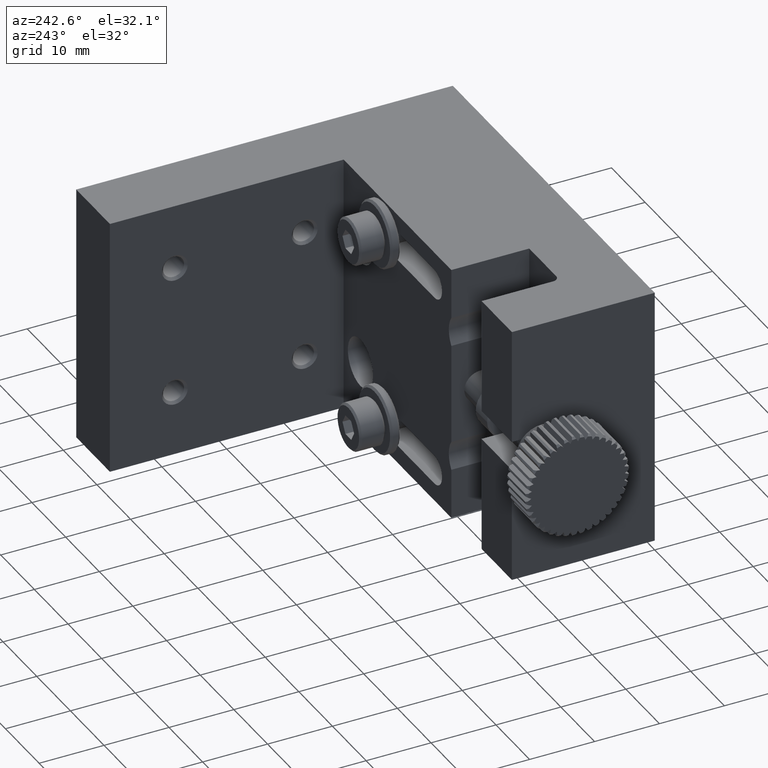
[diagram: clean part render]
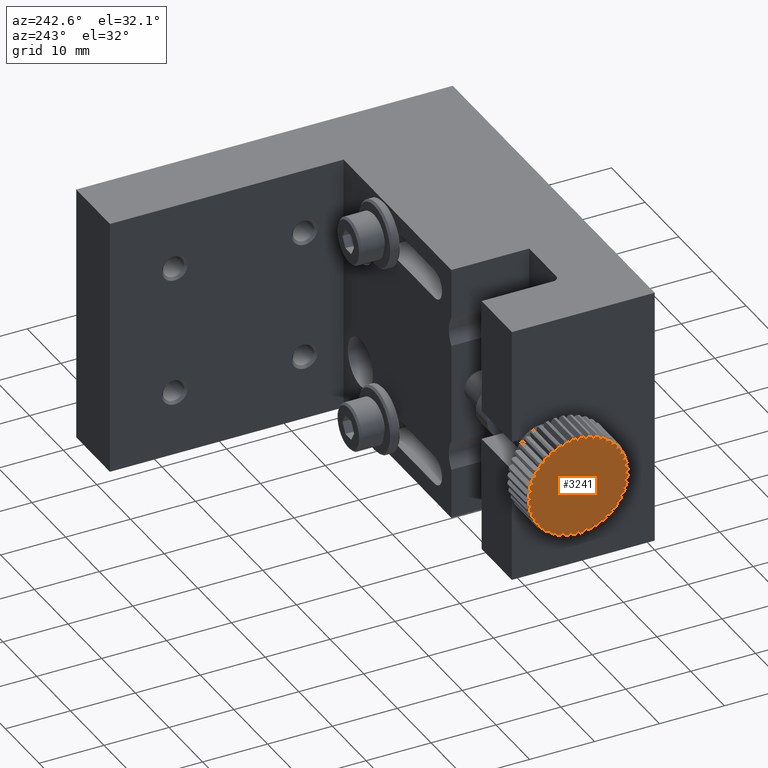
[diagram: same view with one face highlighted and labeled with its STEP entity id]
A machine part, auxiliary view. The second image highlights one B-rep face of the part: STEP entity #3241.
In plain terms, the highlighted planar face has unit normal (1, -0, 0).
Its self-contained STEP definition (entity closure, byte-faithful):
#9 = AXIS2_PLACEMENT_3D ( 'NONE', #11080, #11950, #6945 ) ;
#23 = CARTESIAN_POINT ( 'NONE',  ( -10.99999999999999645, 20.73910209526427195, -13.01938843177370586 ) ) ;
#34 = DIRECTION ( 'NONE',  ( -3.204653064661878969E-18, -0.05233595624294344606, -0.9986295347545739443 ) ) ;
#39 = LINE ( 'NONE', #1856, #2830 ) ;
#51 = CARTESIAN_POINT ( 'NONE',  ( -11.00000000000000000, 14.85435327979484299, -27.22642883323898744 ) ) ;
#75 = CARTESIAN_POINT ( 'NONE',  ( -10.99999999999999822, 17.50000000000000000, -20.00000000000000000 ) ) ;
#113 = CARTESIAN_POINT ( 'NONE',  ( -11.00000000000000000, 23.91524697415625056, -16.73126840187526199 ) ) ;
#116 = DIRECTION ( 'NONE',  ( -5.593852602888079378E-17, -0.9135454576426015327, 0.4067366430757986540 ) ) ;
#124 = ORIENTED_EDGE ( 'NONE', *, *, #1706, .T. ) ;
#136 = CARTESIAN_POINT ( 'NONE',  ( -11.00000000000000000, 17.50000000000000000, -20.00000000000000000 ) ) ;
#141 = EDGE_CURVE ( 'NONE', #5295, #9629, #3499, .T. ) ;
#143 = ORIENTED_EDGE ( 'NONE', *, *, #1100, .T. ) ;
#149 = ORIENTED_EDGE ( 'NONE', *, *, #3475, .F. ) ;
#150 = CARTESIAN_POINT ( 'NONE',  ( -11.00000000000000000, 20.73910209526427195, -26.98061156822629414 ) ) ;
#161 = VERTEX_POINT ( 'NONE', #10525 ) ;
#186 = VERTEX_POINT ( 'NONE', #150 ) ;
#188 = EDGE_CURVE ( 'NONE', #4060, #853, #2432, .T. ) ;
#198 = CARTESIAN_POINT ( 'NONE',  ( -10.99999999999999822, 15.39278486283933134, -27.40137585964400913 ) ) ;
#215 = CARTESIAN_POINT ( 'NONE',  ( -11.00000000000000000, 10.27357116676101256, -17.35435327979483944 ) ) ;
#234 = ORIENTED_EDGE ( 'NONE', *, *, #1347, .T. ) ;
#233 = CARTESIAN_POINT ( 'NONE',  ( -11.00000000000000000, 17.50000000000000000, -20.00000000000000000 ) ) ;
#243 = DIRECTION ( 'NONE',  ( -5.914589856893361534E-17, -0.9659258262890699775, -0.2588190451025147998 ) ) ;
#250 = ORIENTED_EDGE ( 'NONE', *, *, #12262, .F. ) ;
#253 = VECTOR ( 'NONE', #10494, 1000.000000000000114 ) ;
#255 = EDGE_CURVE ( 'NONE', #8892, #4126, #4451, .T. ) ;
#256 = CIRCLE ( 'NONE', #2182, 7.695500000000004448 ) ;
#259 = VERTEX_POINT ( 'NONE', #11105 ) ;
#276 = DIRECTION ( 'NONE',  ( -6.114842316355978540E-17, -0.9986295347545738332, 0.05233595624294497262 ) ) ;
#279 = VECTOR ( 'NONE', #10814, 1000.000000000000227 ) ;
#301 = VERTEX_POINT ( 'NONE', #1477 ) ;
#305 = CARTESIAN_POINT ( 'NONE',  ( -11.00000000000000000, 19.72492235949962236, -13.15239308267489449 ) ) ;
#347 = VERTEX_POINT ( 'NONE', #2756 ) ;
#369 = VECTOR ( 'NONE', #1544, 1000.000000000000114 ) ;
#403 = LINE ( 'NONE', #8521, #369 ) ;
#420 = DIRECTION ( 'NONE',  ( 1.000000000000000000, -6.100543640118497075E-17, 0.000000000000000000 ) ) ;
#423 = LINE ( 'NONE', #7543, #2409 ) ;
#438 = DIRECTION ( 'NONE',  ( -4.550449659119068997E-17, -0.7431448254773966866, 0.6691306063588554620 ) ) ;
#443 = EDGE_CURVE ( 'NONE', #4764, #12290, #5229, .T. ) ;
#444 = LINE ( 'NONE', #10746, #279 ) ;
#449 = EDGE_CURVE ( 'NONE', #8052, #2652, #2060, .T. ) ;
#452 = VECTOR ( 'NONE', #11972, 1000.000000000000000 ) ;
#490 = EDGE_CURVE ( 'NONE', #12202, #3025, #12375, .T. ) ;
#512 = AXIS2_PLACEMENT_3D ( 'NONE', #2788, #3793, #9948 ) ;
#541 = EDGE_CURVE ( 'NONE', #968, #8203, #9169, .T. ) ;
#550 = VERTEX_POINT ( 'NONE', #5426 ) ;
#558 = CIRCLE ( 'NONE', #10191, 7.695500000000008001 ) ;
#567 = ORIENTED_EDGE ( 'NONE', *, *, #10760, .F. ) ;
#577 = DIRECTION ( 'NONE',  ( -2.490543640193590420E-17, -0.4067366430758012075, 0.9135454576426004225 ) ) ;
#605 = CARTESIAN_POINT ( 'NONE',  ( -10.99999999999999822, 9.809707970949141043, -19.71692976504595407 ) ) ;
#614 = CARTESIAN_POINT ( 'NONE',  ( -11.00000000000000000, 16.37367185171034123, -12.88864394771500876 ) ) ;
#644 = ORIENTED_EDGE ( 'NONE', *, *, #10720, .T. ) ;
#646 = CARTESIAN_POINT ( 'NONE',  ( -11.00000000000000000, 12.75075112882201189, -26.05519243373938920 ) ) ;
#662 = AXIS2_PLACEMENT_3D ( 'NONE', #6508, #3225, #7450 ) ;
#698 = DIRECTION ( 'NONE',  ( 5.302876193624527795E-17, 0.8660254037844375974, -0.5000000000000018874 ) ) ;
#704 = CARTESIAN_POINT ( 'NONE',  ( -11.00000000000000000, 10.77641082663006067, -16.25646305244056222 ) ) ;
#711 = EDGE_CURVE ( 'NONE', #9211, #11434, #5480, .T. ) ;
#712 = AXIS2_PLACEMENT_3D ( 'NONE', #8920, #12807, #5787 ) ;
#715 = DIRECTION ( 'NONE',  ( 0.000000000000000000, -1.000000000000000000, 0.000000000000000000 ) ) ;
#716 = LINE ( 'NONE', #1460, #5364 ) ;
#734 = CARTESIAN_POINT ( 'NONE',  ( -10.99999999999999645, 18.98261189020135831, -12.44867016790858827 ) ) ;
#764 = VERTEX_POINT ( 'NONE', #13105 ) ;
#806 = CARTESIAN_POINT ( 'NONE',  ( -10.99999999999999645, 24.90137585964400913, -22.10721513716067221 ) ) ;
#811 = CARTESIAN_POINT ( 'NONE',  ( -10.99999999999999822, 21.79123160981892582, -26.38796145267729187 ) ) ;
#810 = LINE ( 'NONE', #11797, #9116 ) ;
#814 = ORIENTED_EDGE ( 'NONE', *, *, #490, .T. ) ;
#823 = CARTESIAN_POINT ( 'NONE',  ( -11.00000000000000000, 15.27507764050038119, -26.84760691732511262 ) ) ;
#847 = EDGE_CURVE ( 'NONE', #12459, #7409, #2878, .T. ) ;
#853 = VERTEX_POINT ( 'NONE', #1245 ) ;
#890 = VECTOR ( 'NONE', #4622, 1000.000000000000114 ) ;
#919 = ORIENTED_EDGE ( 'NONE', *, *, #7993, .T. ) ;
#958 = CARTESIAN_POINT ( 'NONE',  ( -11.00000000000000000, 23.13801852573479323, -14.76230323964134961 ) ) ;
#965 = VERTEX_POINT ( 'NONE', #10659 ) ;
#966 = DIRECTION ( 'NONE',  ( 1.000000000000000000, -6.100543640118498308E-17, 0.000000000000000000 ) ) ;
#968 = VERTEX_POINT ( 'NONE', #10476 ) ;
#983 = AXIS2_PLACEMENT_3D ( 'NONE', #2354, #4303, #9513 ) ;
#986 = LINE ( 'NONE', #5015, #12198 ) ;
#991 = DIRECTION ( 'NONE',  ( -4.550449659119101661E-17, -0.7431448254774035700, -0.6691306063588478015 ) ) ;
#1011 = DIRECTION ( 'NONE',  ( 0.000000000000000000, -1.000000000000000000, 0.000000000000000000 ) ) ;
#1017 = AXIS2_PLACEMENT_3D ( 'NONE', #3920, #966, #8204 ) ;
#1020 = EDGE_CURVE ( 'NONE', #9629, #2190, #12489, .T. ) ;
#1022 = VERTEX_POINT ( 'NONE', #3329 ) ;
#1023 = DIRECTION ( 'NONE',  ( 1.000000000000000000, -6.100543640118500773E-17, 0.000000000000000000 ) ) ;
#1045 = DIRECTION ( 'NONE',  ( 4.758646570842821780E-17, 0.7771459614569667940, 0.6293203910498426090 ) ) ;
#1050 = VERTEX_POINT ( 'NONE', #6410 ) ;
#1061 = DIRECTION ( 'NONE',  ( 0.000000000000000000, -1.000000000000000000, 0.000000000000000000 ) ) ;
#1072 = VERTEX_POINT ( 'NONE', #11328 ) ;
#1100 = EDGE_CURVE ( 'NONE', #8802, #6089, #8188, .T. ) ;
#1149 = CARTESIAN_POINT ( 'NONE',  ( -10.99999999999999822, 17.50000000000000000, -20.00000000000000000 ) ) ;
#1159 = EDGE_CURVE ( 'NONE', #6503, #10554, #11266, .T. ) ;
#1174 = DIRECTION ( 'NONE',  ( -6.123233995736769734E-17, -1.000000000000000000, -0.000000000000000000 ) ) ;
#1179 = DIRECTION ( 'NONE',  ( -1.273091933326432635E-17, -0.2079116908177604806, 0.9781476007338054668 ) ) ;
#1181 = EDGE_CURVE ( 'NONE', #8474, #9607, #10456, .T. ) ;
#1226 = EDGE_CURVE ( 'NONE', #11151, #12388, #7524, .T. ) ;
#1234 = AXIS2_PLACEMENT_3D ( 'NONE', #6917, #2685, #3748 ) ;
#1236 = VERTEX_POINT ( 'NONE', #1541 ) ;
#1245 = CARTESIAN_POINT ( 'NONE',  ( -10.99999999999999822, 10.27357116676101256, -17.35435327979483944 ) ) ;
#1252 = ORIENTED_EDGE ( 'NONE', *, *, #8625, .F. ) ;
#1258 = VERTEX_POINT ( 'NONE', #3616 ) ;
#1260 = CARTESIAN_POINT ( 'NONE',  ( -10.99999999999999822, 25.05132983209141173, -18.51738810979864525 ) ) ;
#1262 = ORIENTED_EDGE ( 'NONE', *, *, #10866, .T. ) ;
#1286 = DIRECTION ( 'NONE',  ( -6.089690279223581902E-17, -0.9945218953682732899, 0.1045284632676548309 ) ) ;
#1297 = VECTOR ( 'NONE', #10230, 1000.000000000000114 ) ;
#1303 = CIRCLE ( 'NONE', #7097, 7.695500000000009777 ) ;
#1320 = VERTEX_POINT ( 'NONE', #10765 ) ;
#1335 = CARTESIAN_POINT ( 'NONE',  ( -11.00000000000000000, 18.62632814828966232, -27.11135605228499301 ) ) ;
#1347 = EDGE_CURVE ( 'NONE', #1072, #2665, #2955, .T. ) ;
#1361 = VECTOR ( 'NONE', #5651, 1000.000000000000227 ) ;
#1367 = VERTEX_POINT ( 'NONE', #11851 ) ;
#1377 = DIRECTION ( 'NONE',  ( 5.716531405282126160E-17, 0.9335804264972044075, 0.3583679495452933295 ) ) ;
#1384 = VERTEX_POINT ( 'NONE', #9768 ) ;
#1449 = CARTESIAN_POINT ( 'NONE',  ( -11.00000000000000000, 19.72492235949962236, -26.84760691732511262 ) ) ;
#1460 = CARTESIAN_POINT ( 'NONE',  ( -11.00000000000000000, 12.26230323964135316, -14.36198147426521032 ) ) ;
#1466 = CARTESIAN_POINT ( 'NONE',  ( -10.99999999999999822, 12.26230323964135493, -25.63801852573478612 ) ) ;
#1477 = CARTESIAN_POINT ( 'NONE',  ( -10.99999999999999822, 9.948670167908591822, -21.48261189020135831 ) ) ;
#1489 = VERTEX_POINT ( 'NONE', #4158 ) ;
#1504 = CIRCLE ( 'NONE', #10057, 7.695500000000008001 ) ;
#1513 = ORIENTED_EDGE ( 'NONE', *, *, #10918, .T. ) ;
#1516 = DIRECTION ( 'NONE',  ( 0.000000000000000000, -1.000000000000000000, 0.000000000000000000 ) ) ;
#1541 = CARTESIAN_POINT ( 'NONE',  ( -10.99999999999999645, 14.26089790473573160, -26.98061156822629414 ) ) ;
#1543 = VERTEX_POINT ( 'NONE', #9379 ) ;
#1544 = DIRECTION ( 'NONE',  ( -5.135376132867294962E-17, -0.8386705679454258267, -0.5446390350150243087 ) ) ;
#1562 = ORIENTED_EDGE ( 'NONE', *, *, #3882, .T. ) ;
#1575 = ORIENTED_EDGE ( 'NONE', *, *, #7789, .F. ) ;
#1595 = DIRECTION ( 'NONE',  ( 0.000000000000000000, -1.000000000000000000, 0.000000000000000000 ) ) ;
#1598 = ORIENTED_EDGE ( 'NONE', *, *, #9546, .T. ) ;
#1605 = EDGE_CURVE ( 'NONE', #6077, #4523, #10682, .T. ) ;
#1628 = VECTOR ( 'NONE', #9703, 1000.000000000000114 ) ;
#1644 = VERTEX_POINT ( 'NONE', #7695 ) ;
#1659 = AXIS2_PLACEMENT_3D ( 'NONE', #8974, #12995, #5035 ) ;
#1661 = ORIENTED_EDGE ( 'NONE', *, *, #10038, .F. ) ;
#1706 = EDGE_CURVE ( 'NONE', #7181, #5204, #2284, .T. ) ;
#1710 = EDGE_CURVE ( 'NONE', #8535, #8892, #7508, .T. ) ;
#1717 = ORIENTED_EDGE ( 'NONE', *, *, #4243, .T. ) ;
#1728 = EDGE_CURVE ( 'NONE', #6503, #550, #558, .T. ) ;
#1733 = DIRECTION ( 'NONE',  ( 1.273091933326407367E-17, 0.2079116908177589818, -0.9781476007338056888 ) ) ;
#1734 = DIRECTION ( 'NONE',  ( -1.584809575715945333E-17, -0.2588190451025301209, 0.9659258262890657587 ) ) ;
#1753 = CARTESIAN_POINT ( 'NONE',  ( -11.00000000000000000, 11.08475302584375299, -16.73126840187525843 ) ) ;
#1767 = ORIENTED_EDGE ( 'NONE', *, *, #7846, .T. ) ;
#1769 = CARTESIAN_POINT ( 'NONE',  ( -11.00000000000000000, 13.20876839018107241, -13.61203854732270102 ) ) ;
#1803 = CARTESIAN_POINT ( 'NONE',  ( -11.00000000000000000, 14.23126840187526376, -13.58475302584375122 ) ) ;
#1828 = EDGE_CURVE ( 'NONE', #7196, #1367, #12839, .T. ) ;
#1837 = DIRECTION ( 'NONE',  ( 1.000000000000000000, -6.100543640118495843E-17, 0.000000000000000000 ) ) ;
#1840 = DIRECTION ( 'NONE',  ( 0.000000000000000000, -1.000000000000000000, 0.000000000000000000 ) ) ;
#1845 = DIRECTION ( 'NONE',  ( -3.061616997868380553E-17, -0.4999999999999984457, -0.8660254037844394848 ) ) ;
#1847 = CIRCLE ( 'NONE', #4633, 7.695500000000008001 ) ;
#1856 = CARTESIAN_POINT ( 'NONE',  ( -11.00000000000000000, 21.73205381650581103, -14.17507764050037977 ) ) ;
#1877 = EDGE_CURVE ( 'NONE', #3025, #8308, #8747, .T. ) ;
#1927 = CARTESIAN_POINT ( 'NONE',  ( -11.00000000000000178, 13.26794618349419252, -14.17507764050038155 ) ) ;
#1929 = VERTEX_POINT ( 'NONE', #1927 ) ;
#1948 = AXIS2_PLACEMENT_3D ( 'NONE', #4775, #13068, #8773 ) ;
#1973 = DIRECTION ( 'NONE',  ( 5.914589856893331952E-17, 0.9659258262890654256, 0.2588190451025315642 ) ) ;
#1981 = CARTESIAN_POINT ( 'NONE',  ( -11.00000000000000178, 12.26230323964135493, -14.36198147426521743 ) ) ;
#2012 = CARTESIAN_POINT ( 'NONE',  ( -11.00000000000000000, 9.860106286360892369, -20.92344154893408970 ) ) ;
#2020 = VERTEX_POINT ( 'NONE', #10613 ) ;
#2041 = LINE ( 'NONE', #958, #8555 ) ;
#2050 = LINE ( 'NONE', #6140, #4091 ) ;
#2060 = CIRCLE ( 'NONE', #12729, 7.695500000000004448 ) ;
#2064 = CARTESIAN_POINT ( 'NONE',  ( -11.00000000000000000, 14.26089790473573160, -13.01938843177370941 ) ) ;
#2079 = DIRECTION ( 'NONE',  ( 1.000000000000000000, -6.100543640118495843E-17, 0.000000000000000000 ) ) ;
#2094 = EDGE_CURVE ( 'NONE', #8979, #764, #8488, .T. ) ;
#2118 = CARTESIAN_POINT ( 'NONE',  ( -10.99999999999999822, 24.22358917336994111, -23.74353694755944133 ) ) ;
#2119 = VERTEX_POINT ( 'NONE', #9871 ) ;
#2122 = ORIENTED_EDGE ( 'NONE', *, *, #5219, .T. ) ;
#2150 = VERTEX_POINT ( 'NONE', #5667 ) ;
#2172 = EDGE_CURVE ( 'NONE', #5725, #9234, #11882, .T. ) ;
#2177 = CARTESIAN_POINT ( 'NONE',  ( -11.00000000000000000, 25.05132983209141528, -21.48261189020135831 ) ) ;
#2180 = CIRCLE ( 'NONE', #2388, 7.695500000000008001 ) ;
#2182 = AXIS2_PLACEMENT_3D ( 'NONE', #12127, #12582, #11453 ) ;
#2190 = VERTEX_POINT ( 'NONE', #10730 ) ;
#2197 = ORIENTED_EDGE ( 'NONE', *, *, #11591, .F. ) ;
#2207 = CARTESIAN_POINT ( 'NONE',  ( -11.00000000000000000, 11.08475302584375122, -23.26873159812473091 ) ) ;
#2211 = VECTOR ( 'NONE', #4863, 1000.000000000000114 ) ;
#2234 = ORIENTED_EDGE ( 'NONE', *, *, #6774, .F. ) ;
#2236 = DIRECTION ( 'NONE',  ( 5.989426641661588516E-17, 0.9781476007338056888, -0.2079116908177589818 ) ) ;
#2251 = PLANE ( 'NONE',  #3599 ) ;
#2254 = DIRECTION ( 'NONE',  ( 0.000000000000000000, -1.000000000000000000, 0.000000000000000000 ) ) ;
#2255 = EDGE_CURVE ( 'NONE', #4251, #11268, #11949, .T. ) ;
#2260 = VECTOR ( 'NONE', #12601, 1000.000000000000114 ) ;
#2274 = DIRECTION ( 'NONE',  ( 6.089690279223570809E-17, 0.9945218953682734009, -0.1045284632676525827 ) ) ;
#2284 = LINE ( 'NONE', #1335, #5493 ) ;
#2286 = ORIENTED_EDGE ( 'NONE', *, *, #5231, .T. ) ;
#2304 = ORIENTED_EDGE ( 'NONE', *, *, #2967, .T. ) ;
#2337 = EDGE_CURVE ( 'NONE', #259, #1258, #3378, .T. ) ;
#2352 = EDGE_CURVE ( 'NONE', #2119, #2190, #3582, .T. ) ;
#2354 = CARTESIAN_POINT ( 'NONE',  ( -10.99999999999999467, 17.50000000000000000, -20.00000000000000000 ) ) ;
#2356 = VERTEX_POINT ( 'NONE', #8005 ) ;
#2364 = VECTOR ( 'NONE', #6572, 1000.000000000000227 ) ;
#2380 = CARTESIAN_POINT ( 'NONE',  ( -11.00000000000000000, 25.19550000000000978, -20.00000000000000000 ) ) ;
#2388 = AXIS2_PLACEMENT_3D ( 'NONE', #12061, #12195, #9184 ) ;
#2393 = DIRECTION ( 'NONE',  ( 2.194370811638232619E-17, 0.3583679495452954944, -0.9335804264972036304 ) ) ;
#2394 = VERTEX_POINT ( 'NONE', #1981 ) ;
#2409 = VECTOR ( 'NONE', #9600, 1000.000000000000227 ) ;
#2432 = LINE ( 'NONE', #215, #9096 ) ;
#2437 = CIRCLE ( 'NONE', #712, 7.695500000000004448 ) ;
#2448 = DIRECTION ( 'NONE',  ( 0.000000000000000000, -1.000000000000000000, 0.000000000000000000 ) ) ;
#2456 = ORIENTED_EDGE ( 'NONE', *, *, #541, .T. ) ;
#2463 = CARTESIAN_POINT ( 'NONE',  ( -10.99999999999999645, 19.60721513716067221, -12.59862414035599265 ) ) ;
#2471 = CARTESIAN_POINT ( 'NONE',  ( -11.00000000000000000, 12.40883117545686076, -25.09116882454313924 ) ) ;
#2490 = EDGE_CURVE ( 'NONE', #9211, #8474, #8764, .T. ) ;
#2507 = DIRECTION ( 'NONE',  ( 1.000000000000000000, -6.100543640118497075E-17, 0.000000000000000000 ) ) ;
#2537 = DIRECTION ( 'NONE',  ( -5.593852602888086773E-17, -0.9135454576426015327, -0.4067366430757986540 ) ) ;
#2548 = EDGE_CURVE ( 'NONE', #161, #10942, #403, .T. ) ;
#2551 = CARTESIAN_POINT ( 'NONE',  ( -11.00000000000000000, 10.51938843177370053, -23.23910209526425774 ) ) ;
#2564 = CIRCLE ( 'NONE', #10267, 7.695500000000009777 ) ;
#2580 = EDGE_CURVE ( 'NONE', #1236, #3106, #5317, .T. ) ;
#2591 = LINE ( 'NONE', #704, #5048 ) ;
#2599 = EDGE_CURVE ( 'NONE', #7168, #12838, #2729, .T. ) ;
#2639 = ORIENTED_EDGE ( 'NONE', *, *, #7873, .F. ) ;
#2648 = LINE ( 'NONE', #9872, #9215 ) ;
#2652 = VERTEX_POINT ( 'NONE', #10973 ) ;
#2665 = VERTEX_POINT ( 'NONE', #1753 ) ;
#2685 = DIRECTION ( 'NONE',  ( 1.000000000000000000, -6.100543640118498308E-17, 0.000000000000000000 ) ) ;
#2691 = VERTEX_POINT ( 'NONE', #11050 ) ;
#2697 = VECTOR ( 'NONE', #3828, 1000.000000000000000 ) ;
#2717 = ORIENTED_EDGE ( 'NONE', *, *, #3901, .T. ) ;
#2718 = CARTESIAN_POINT ( 'NONE',  ( -11.00000000000000000, 11.67507764050038332, -15.76794618349419075 ) ) ;
#2729 = CIRCLE ( 'NONE', #1659, 7.695500000000009777 ) ;
#2736 = CARTESIAN_POINT ( 'NONE',  ( -11.00000000000000000, 20.76873159812474157, -13.58475302584375122 ) ) ;
#2752 = VERTEX_POINT ( 'NONE', #9032 ) ;
#2756 = CARTESIAN_POINT ( 'NONE',  ( -10.99999999999999822, 17.78307023495404238, -27.69029202905085896 ) ) ;
#2765 = CIRCLE ( 'NONE', #10253, 7.695500000000008001 ) ;
#2771 = CARTESIAN_POINT ( 'NONE',  ( -11.00000000000000000, 22.59116882454314279, -25.09116882454313924 ) ) ;
#2785 = VECTOR ( 'NONE', #7696, 1000.000000000000114 ) ;
#2788 = CARTESIAN_POINT ( 'NONE',  ( -11.00000000000000000, 17.50000000000000000, -20.00000000000000000 ) ) ;
#2797 = DIRECTION ( 'NONE',  ( -4.758646570842836571E-17, -0.7771459614569662389, -0.6293203910498432752 ) ) ;
#2830 = VECTOR ( 'NONE', #9220, 1000.000000000000114 ) ;
#2850 = ORIENTED_EDGE ( 'NONE', *, *, #11963, .T. ) ;
#2869 = LINE ( 'NONE', #51, #8356 ) ;
#2878 = CIRCLE ( 'NONE', #11669, 7.695500000000011553 ) ;
#2892 = LINE ( 'NONE', #13003, #2697 ) ;
#2901 = VECTOR ( 'NONE', #10647, 1000.000000000000114 ) ;
#2910 = DIRECTION ( 'NONE',  ( 1.000000000000000000, -6.100543640118497075E-17, -3.389190911176942777E-18 ) ) ;
#2915 = DIRECTION ( 'NONE',  ( 1.000000000000000000, -6.100543640118497075E-17, 0.000000000000000000 ) ) ;
#2919 = DIRECTION ( 'NONE',  ( 1.000000000000000000, -6.100543640118495843E-17, -6.616290258664929737E-33 ) ) ;
#2953 = VECTOR ( 'NONE', #3239, 1000.000000000000114 ) ;
#2955 = LINE ( 'NONE', #6979, #8049 ) ;
#2962 = ORIENTED_EDGE ( 'NONE', *, *, #7069, .T. ) ;
#2964 = DIRECTION ( 'NONE',  ( 1.000000000000000000, -6.100543640118497075E-17, 0.000000000000000000 ) ) ;
#2967 = EDGE_CURVE ( 'NONE', #11600, #10732, #12566, .T. ) ;
#2977 = DIRECTION ( 'NONE',  ( -5.914589856893331952E-17, -0.9659258262890654256, 0.2588190451025315642 ) ) ;
#2982 = CARTESIAN_POINT ( 'NONE',  ( -11.00000000000000000, 24.48061156822630124, -16.76089790473573160 ) ) ;
#3025 = VERTEX_POINT ( 'NONE', #2718 ) ;
#3026 = VECTOR ( 'NONE', #7570, 1000.000000000000227 ) ;
#3041 = LINE ( 'NONE', #8332, #4727 ) ;
#3106 = VERTEX_POINT ( 'NONE', #3788 ) ;
#3120 = CARTESIAN_POINT ( 'NONE',  ( -10.99999999999999822, 17.50000000000000000, -20.00000000000000000 ) ) ;
#3149 = LINE ( 'NONE', #5098, #7741 ) ;
#3157 = VERTEX_POINT ( 'NONE', #8144 ) ;
#3211 = CARTESIAN_POINT ( 'NONE',  ( -11.00000000000000000, 11.67507764050038332, -15.76794618349419075 ) ) ;
#3225 = DIRECTION ( 'NONE',  ( 1.000000000000000000, -6.100543640118495843E-17, 0.000000000000000000 ) ) ;
#3233 = VECTOR ( 'NONE', #2537, 1000.000000000000227 ) ;
#3239 = DIRECTION ( 'NONE',  ( 5.302876193624521016E-17, 0.8660254037844380415, 0.5000000000000011102 ) ) ;
#3241 = ADVANCED_FACE ( 'NONE', ( #12420 ), #2251, .F. ) ;
#3252 = VECTOR ( 'NONE', #4234, 1000.000000000000114 ) ;
#3301 = CARTESIAN_POINT ( 'NONE',  ( -11.00000000000000000, 16.37367185171034123, -12.88864394771500876 ) ) ;
#3317 = DIRECTION ( 'NONE',  ( 0.000000000000000000, -1.000000000000000000, 0.000000000000000000 ) ) ;
#3329 = CARTESIAN_POINT ( 'NONE',  ( -10.99999999999999822, 25.13989371363911118, -20.92344154893408614 ) ) ;
#3355 = VECTOR ( 'NONE', #9482, 999.9999999999998863 ) ;
#3357 = CARTESIAN_POINT ( 'NONE',  ( -11.00000000000000000, 18.62632814828966232, -27.11135605228499301 ) ) ;
#3363 = CARTESIAN_POINT ( 'NONE',  ( -11.00000000000000000, 23.88796145267729187, -15.70876839018107241 ) ) ;
#3365 = ORIENTED_EDGE ( 'NONE', *, *, #9176, .T. ) ;
#3378 = CIRCLE ( 'NONE', #10421, 7.695500000000008001 ) ;
#3402 = CARTESIAN_POINT ( 'NONE',  ( -11.00000000000000000, 23.91524697415625056, -23.26873159812474157 ) ) ;
#3437 = CARTESIAN_POINT ( 'NONE',  ( -10.99999999999999645, 17.50000000000000000, -20.00000000000000000 ) ) ;
#3440 = AXIS2_PLACEMENT_3D ( 'NONE', #10552, #11369, #12567 ) ;
#3451 = CARTESIAN_POINT ( 'NONE',  ( -11.00000000000000000, 16.57655845106591030, -12.36010628636089415 ) ) ;
#3452 = CARTESIAN_POINT ( 'NONE',  ( -11.00000000000000000, 12.40883117545686076, -25.09116882454313924 ) ) ;
#3475 = EDGE_CURVE ( 'NONE', #968, #3945, #8101, .T. ) ;
#3486 = CARTESIAN_POINT ( 'NONE',  ( -11.00000000000000000, 17.50000000000000000, -27.20000000000000284 ) ) ;
#3499 = LINE ( 'NONE', #7530, #2260 ) ;
#3555 = VERTEX_POINT ( 'NONE', #823 ) ;
#3570 = VECTOR ( 'NONE', #3712, 1000.000000000000000 ) ;
#3575 = EDGE_CURVE ( 'NONE', #11600, #10192, #3817, .T. ) ;
#3577 = EDGE_CURVE ( 'NONE', #2020, #1320, #12147, .T. ) ;
#3582 = CIRCLE ( 'NONE', #1017, 7.695500000000008001 ) ;
#3594 = ORIENTED_EDGE ( 'NONE', *, *, #10528, .T. ) ;
#3599 = AXIS2_PLACEMENT_3D ( 'NONE', #2380, #4399, #1174 ) ;
#3616 = CARTESIAN_POINT ( 'NONE',  ( -10.99999999999999822, 24.48061156822629059, -16.76089790473573160 ) ) ;
#3638 = ORIENTED_EDGE ( 'NONE', *, *, #6187, .F. ) ;
#3642 = DIRECTION ( 'NONE',  ( 1.000000000000000000, -6.100543640118500773E-17, 0.000000000000000000 ) ) ;
#3662 = CARTESIAN_POINT ( 'NONE',  ( -10.99999999999999822, 17.78307023495404238, -12.30970797094913927 ) ) ;
#3663 = DIRECTION ( 'NONE',  ( 3.061616997868407670E-17, 0.5000000000000018874, -0.8660254037844375974 ) ) ;
#3677 = ORIENTED_EDGE ( 'NONE', *, *, #4499, .F. ) ;
#3704 = DIRECTION ( 'NONE',  ( -6.400522398026084468E-18, -0.1045284632676514031, 0.9945218953682736229 ) ) ;
#3712 = DIRECTION ( 'NONE',  ( -0.000000000000000000, 0.8660254037844380415, 0.5000000000000009992 ) ) ;
#3733 = CARTESIAN_POINT ( 'NONE',  ( -11.00000000000000000, 9.809707970949141043, -20.28307023495403882 ) ) ;
#3740 = DIRECTION ( 'NONE',  ( 3.204653064661624361E-18, 0.05233595624294192644, 0.9986295347545740553 ) ) ;
#3741 = ORIENTED_EDGE ( 'NONE', *, *, #6574, .F. ) ;
#3744 = VECTOR ( 'NONE', #8741, 1000.000000000000114 ) ;
#3748 = DIRECTION ( 'NONE',  ( 0.000000000000000000, -1.000000000000000000, 0.000000000000000000 ) ) ;
#3765 = DIRECTION ( 'NONE',  ( 0.000000000000000000, -1.000000000000000000, 0.000000000000000000 ) ) ;
#3788 = CARTESIAN_POINT ( 'NONE',  ( -10.99999999999999822, 14.85435327979484121, -27.22642883323898744 ) ) ;
#3793 = DIRECTION ( 'NONE',  ( 1.000000000000000000, -6.100543640118497075E-17, 0.000000000000000000 ) ) ;
#3808 = VERTEX_POINT ( 'NONE', #6662 ) ;
#3817 = CIRCLE ( 'NONE', #12366, 7.695500000000011553 ) ;
#3828 = DIRECTION ( 'NONE',  ( 5.914589856893333184E-17, 0.9659258262890653146, -0.2588190451025319527 ) ) ;
#3882 = EDGE_CURVE ( 'NONE', #4462, #4060, #6990, .T. ) ;
#3887 = VECTOR ( 'NONE', #6246, 1000.000000000000000 ) ;
#3893 = DIRECTION ( 'NONE',  ( -5.989426641661588516E-17, -0.9781476007338056888, -0.2079116908177589818 ) ) ;
#3899 = AXIS2_PLACEMENT_3D ( 'NONE', #6696, #10811, #1516 ) ;
#3901 = EDGE_CURVE ( 'NONE', #1367, #5143, #8982, .T. ) ;
#3920 = CARTESIAN_POINT ( 'NONE',  ( -11.00000000000000000, 17.50000000000000000, -20.00000000000000000 ) ) ;
#3922 = VERTEX_POINT ( 'NONE', #811 ) ;
#3933 = EDGE_CURVE ( 'NONE', #13100, #10890, #5848, .T. ) ;
#3935 = AXIS2_PLACEMENT_3D ( 'NONE', #8851, #12001, #3765 ) ;
#3945 = VERTEX_POINT ( 'NONE', #5982 ) ;
#3981 = LINE ( 'NONE', #12149, #2211 ) ;
#3988 = ORIENTED_EDGE ( 'NONE', *, *, #141, .T. ) ;
#4000 = CARTESIAN_POINT ( 'NONE',  ( -11.00000000000000000, 10.38864394771501232, -21.12632814828966232 ) ) ;
#4051 = DIRECTION ( 'NONE',  ( 6.400522398026200794E-18, 0.1045284632676532904, 0.9945218953682734009 ) ) ;
#4060 = VERTEX_POINT ( 'NONE', #5248 ) ;
#4087 = LINE ( 'NONE', #2012, #12888 ) ;
#4091 = VECTOR ( 'NONE', #10205, 1000.000000000000114 ) ;
#4092 = ORIENTED_EDGE ( 'NONE', *, *, #2352, .F. ) ;
#4097 = VERTEX_POINT ( 'NONE', #8321 ) ;
#4126 = VERTEX_POINT ( 'NONE', #10318 ) ;
#4128 = ORIENTED_EDGE ( 'NONE', *, *, #9224, .T. ) ;
#4129 = ORIENTED_EDGE ( 'NONE', *, *, #2490, .T. ) ;
#4131 = ORIENTED_EDGE ( 'NONE', *, *, #10168, .F. ) ;
#4154 = EDGE_CURVE ( 'NONE', #10455, #5209, #7388, .T. ) ;
#4158 = CARTESIAN_POINT ( 'NONE',  ( -11.00000000000000000, 20.14564672020515346, -27.22642883323899099 ) ) ;
#4168 = CARTESIAN_POINT ( 'NONE',  ( -11.00000000000000000, 24.61135605228499301, -21.12632814828966232 ) ) ;
#4195 = DIRECTION ( 'NONE',  ( 0.000000000000000000, -1.000000000000000000, 0.000000000000000000 ) ) ;
#4219 = DIRECTION ( 'NONE',  ( 1.000000000000000000, -6.100543640118495843E-17, 0.000000000000000000 ) ) ;
#4234 = DIRECTION ( 'NONE',  ( -6.089690279223570809E-17, -0.9945218953682734009, -0.1045284632676525827 ) ) ;
#4243 = EDGE_CURVE ( 'NONE', #11609, #4097, #8809, .T. ) ;
#4251 = VERTEX_POINT ( 'NONE', #3486 ) ;
#4299 = ORIENTED_EDGE ( 'NONE', *, *, #11750, .T. ) ;
#4301 = CARTESIAN_POINT ( 'NONE',  ( -10.99999999999999822, 10.77641082663005889, -16.25646305244056222 ) ) ;
#4303 = DIRECTION ( 'NONE',  ( 1.000000000000000000, -6.100543640118497075E-17, 0.000000000000000000 ) ) ;
#4324 = AXIS2_PLACEMENT_3D ( 'NONE', #6735, #2507, #6604 ) ;
#4341 = DIRECTION ( 'NONE',  ( 1.000000000000000000, -6.100543640118498308E-17, 0.000000000000000000 ) ) ;
#4346 = CARTESIAN_POINT ( 'NONE',  ( -10.99999999999999822, 25.05132983209141173, -21.48261189020135831 ) ) ;
#4392 = EDGE_CURVE ( 'NONE', #301, #1644, #6954, .T. ) ;
#4396 = ORIENTED_EDGE ( 'NONE', *, *, #1877, .T. ) ;
#4399 = DIRECTION ( 'NONE',  ( 1.000000000000000000, -6.123233995736769734E-17, 0.000000000000000000 ) ) ;
#4451 = LINE ( 'NONE', #8772, #2901 ) ;
#4462 = VERTEX_POINT ( 'NONE', #6282 ) ;
#4469 = CARTESIAN_POINT ( 'NONE',  ( -10.99999999999999822, 17.50000000000000000, -20.00000000000000000 ) ) ;
#4493 = CARTESIAN_POINT ( 'NONE',  ( -10.99999999999999822, 25.13989371363910763, -19.07655845106591030 ) ) ;
#4499 = EDGE_CURVE ( 'NONE', #7196, #1543, #2765, .T. ) ;
#4523 = VERTEX_POINT ( 'NONE', #3451 ) ;
#4526 = VERTEX_POINT ( 'NONE', #7542 ) ;
#4533 = LINE ( 'NONE', #10861, #5564 ) ;
#4536 = DIRECTION ( 'NONE',  ( 6.400522398026084468E-18, 0.1045284632676514031, -0.9945218953682736229 ) ) ;
#4551 = VECTOR ( 'NONE', #1179, 999.9999999999998863 ) ;
#4565 = EDGE_CURVE ( 'NONE', #10554, #12126, #4533, .T. ) ;
#4583 = CIRCLE ( 'NONE', #5240, 7.695500000000009777 ) ;
#4586 = DIRECTION ( 'NONE',  ( -5.302876193624515469E-17, -0.8660254037844371533, 0.5000000000000026645 ) ) ;
#4596 = ORIENTED_EDGE ( 'NONE', *, *, #12039, .T. ) ;
#4613 = VECTOR ( 'NONE', #34, 1000.000000000000000 ) ;
#4622 = DIRECTION ( 'NONE',  ( -3.334952254609267603E-17, -0.5446390350150253079, -0.8386705679454252715 ) ) ;
#4626 = CIRCLE ( 'NONE', #983, 7.695500000000011553 ) ;
#4633 = AXIS2_PLACEMENT_3D ( 'NONE', #9171, #2079, #6168 ) ;
#4634 = DIRECTION ( 'NONE',  ( 3.334952254609221381E-17, 0.5446390350150176474, 0.8386705679454301565 ) ) ;
#4640 = CARTESIAN_POINT ( 'NONE',  ( -11.00000000000000000, 9.948670167908591822, -18.51738810979864169 ) ) ;
#4644 = EDGE_CURVE ( 'NONE', #1929, #3945, #10660, .T. ) ;
#4664 = VERTEX_POINT ( 'NONE', #10723 ) ;
#4682 = ORIENTED_EDGE ( 'NONE', *, *, #1159, .T. ) ;
#4689 = CARTESIAN_POINT ( 'NONE',  ( -10.99999999999999289, 21.79123160981893292, -13.61203854732270457 ) ) ;
#4713 = ORIENTED_EDGE ( 'NONE', *, *, #5865, .F. ) ;
#4727 = VECTOR ( 'NONE', #2236, 1000.000000000000000 ) ;
#4764 = VERTEX_POINT ( 'NONE', #8927 ) ;
#4775 = CARTESIAN_POINT ( 'NONE',  ( -11.00000000000000000, 17.50000000000000000, -20.00000000000000000 ) ) ;
#4777 = DIRECTION ( 'NONE',  ( -1.273091933326407367E-17, -0.2079116908177589818, -0.9781476007338056888 ) ) ;
#4780 = EDGE_CURVE ( 'NONE', #11083, #2652, #2041, .T. ) ;
#4787 = LINE ( 'NONE', #8719, #1361 ) ;
#4798 = EDGE_CURVE ( 'NONE', #9757, #1050, #7065, .T. ) ;
#4815 = CARTESIAN_POINT ( 'NONE',  ( -11.00000000000000000, 17.50000000000000000, -12.79999999999999893 ) ) ;
#4853 = DIRECTION ( 'NONE',  ( 3.853476012686752619E-17, 0.6293203910498434972, 0.7771459614569660168 ) ) ;
#4863 = DIRECTION ( 'NONE',  ( 3.334952254609267603E-17, 0.5446390350150253079, -0.8386705679454252715 ) ) ;
#4874 = VERTEX_POINT ( 'NONE', #734 ) ;
#4881 = CARTESIAN_POINT ( 'NONE',  ( -11.00000000000000000, 11.67507764050038332, -24.23205381650581103 ) ) ;
#4913 = DIRECTION ( 'NONE',  ( 0.000000000000000000, -1.000000000000000000, 0.000000000000000000 ) ) ;
#4959 = VECTOR ( 'NONE', #9779, 1000.000000000000000 ) ;
#5010 = CARTESIAN_POINT ( 'NONE',  ( -11.00000000000000000, 24.61135605228499301, -21.12632814828966232 ) ) ;
#5015 = CARTESIAN_POINT ( 'NONE',  ( -11.00000000000000000, 22.73769676035865217, -25.63801852573478968 ) ) ;
#5035 = DIRECTION ( 'NONE',  ( 0.000000000000000000, -1.000000000000000000, 0.000000000000000000 ) ) ;
#5042 = CARTESIAN_POINT ( 'NONE',  ( -10.99999999999999467, 11.11203854732270635, -15.70876839018106885 ) ) ;
#5047 = VECTOR ( 'NONE', #12029, 999.9999999999998863 ) ;
#5048 = VECTOR ( 'NONE', #8871, 1000.000000000000114 ) ;
#5098 = CARTESIAN_POINT ( 'NONE',  ( -11.00000000000000000, 14.23126840187526199, -26.41524697415625056 ) ) ;
#5120 = VERTEX_POINT ( 'NONE', #10503 ) ;
#5128 = VECTOR ( 'NONE', #4777, 1000.000000000000000 ) ;
#5129 = DIRECTION ( 'NONE',  ( 4.758646570842836571E-17, 0.7771459614569662389, -0.6293203910498432752 ) ) ;
#5143 = VERTEX_POINT ( 'NONE', #4493 ) ;
#5170 = EDGE_CURVE ( 'NONE', #8029, #8979, #11638, .T. ) ;
#5176 = VECTOR ( 'NONE', #11671, 1000.000000000000114 ) ;
#5177 = CARTESIAN_POINT ( 'NONE',  ( -10.99999999999999822, 17.21692976504596118, -12.30970797094913927 ) ) ;
#5189 = EDGE_LOOP ( 'NONE', ( #8036, #1767, #7489, #1562, #12758, #1252, #234, #10098, #6061, #814, #4396, #2234, #7539, #2286, #12000, #11231, #8122, #149, #2456, #9078, #5555, #3988, #6540, #4092, #919, #8868, #3638, #10577, #2850, #6721, #7431, #6724, #567, #13010, #12702, #7250, #5922, #8706, #7429, #11196, #8411, #12450, #11728, #7347, #8522, #1513, #10587, #5500, #7683, #644, #9533, #10256, #9516, #3677, #10188, #2717, #1661, #9876, #11824, #2639, #8765, #4128, #9582, #1262, #9347, #10780, #2304, #3365, #10629, #143, #4596, #250, #9567, #7908, #5288, #8897, #3594, #4713, #6204, #4299, #1575, #6444, #9194, #3741, #124, #12227, #12135, #6177, #11433, #12352, #2122, #9898, #2197, #9173, #2962, #9117, #7632, #11015, #11891, #9159, #5510, #5940, #6773, #9832, #6649, #1717, #12035, #9537, #4129, #10837, #11951, #7919, #5300, #4131, #6602, #1598, #8833, #4682, #8909, #11867 ) ) ;
#5194 = CIRCLE ( 'NONE', #3899, 7.695500000000011553 ) ;
#5204 = VERTEX_POINT ( 'NONE', #3357 ) ;
#5207 = VERTEX_POINT ( 'NONE', #9381 ) ;
#5209 = VERTEX_POINT ( 'NONE', #7378 ) ;
#5219 = EDGE_CURVE ( 'NONE', #10409, #12206, #6768, .T. ) ;
#5229 = LINE ( 'NONE', #9432, #10588 ) ;
#5231 = EDGE_CURVE ( 'NONE', #5207, #2394, #716, .T. ) ;
#5240 = AXIS2_PLACEMENT_3D ( 'NONE', #11002, #6136, #1840 ) ;
#5248 = CARTESIAN_POINT ( 'NONE',  ( -11.00000000000000000, 10.65239308267489626, -17.77507764050037764 ) ) ;
#5250 = VECTOR ( 'NONE', #3893, 1000.000000000000000 ) ;
#5260 = EDGE_CURVE ( 'NONE', #3808, #12126, #2564, .T. ) ;
#5288 = ORIENTED_EDGE ( 'NONE', *, *, #9974, .F. ) ;
#5295 = VERTEX_POINT ( 'NONE', #6704 ) ;
#5296 = EDGE_CURVE ( 'NONE', #2752, #7796, #7630, .T. ) ;
#5300 = ORIENTED_EDGE ( 'NONE', *, *, #8455, .T. ) ;
#5317 = CIRCLE ( 'NONE', #1234, 7.695500000000011553 ) ;
#5332 = EDGE_CURVE ( 'NONE', #1320, #2150, #986, .T. ) ;
#5364 = VECTOR ( 'NONE', #1734, 1000.000000000000227 ) ;
#5408 = VERTEX_POINT ( 'NONE', #10026 ) ;
#5410 = DIRECTION ( 'NONE',  ( 1.000000000000000000, -6.100543640118500773E-17, 0.000000000000000000 ) ) ;
#5418 = CARTESIAN_POINT ( 'NONE',  ( -11.00000000000000000, 10.38864394771501232, -18.87367185171033768 ) ) ;
#5426 = CARTESIAN_POINT ( 'NONE',  ( -11.00000000000000000, 9.860106286360897698, -20.92344154893408970 ) ) ;
#5429 = CARTESIAN_POINT ( 'NONE',  ( -10.99999999999999822, 10.51938843177370408, -23.23910209526426485 ) ) ;
#5471 = LINE ( 'NONE', #9543, #4551 ) ;
#5473 = AXIS2_PLACEMENT_3D ( 'NONE', #11504, #6427, #10297 ) ;
#5480 = CIRCLE ( 'NONE', #512, 7.695500000000008001 ) ;
#5487 = CARTESIAN_POINT ( 'NONE',  ( -11.00000000000000000, 10.09862414035599087, -22.10721513716067221 ) ) ;
#5493 = VECTOR ( 'NONE', #12578, 1000.000000000000114 ) ;
#5498 = LINE ( 'NONE', #12518, #3887 ) ;
#5500 = ORIENTED_EDGE ( 'NONE', *, *, #11997, .F. ) ;
#5505 = VECTOR ( 'NONE', #1845, 1000.000000000000227 ) ;
#5510 = ORIENTED_EDGE ( 'NONE', *, *, #5296, .T. ) ;
#5515 = VERTEX_POINT ( 'NONE', #4346 ) ;
#5523 = CARTESIAN_POINT ( 'NONE',  ( -11.00000000000000000, 10.38864394771501409, -18.87367185171033768 ) ) ;
#5533 = EDGE_CURVE ( 'NONE', #7168, #5408, #11432, .T. ) ;
#5535 = EDGE_CURVE ( 'NONE', #3808, #6050, #7231, .T. ) ;
#5555 = ORIENTED_EDGE ( 'NONE', *, *, #7917, .F. ) ;
#5561 = LINE ( 'NONE', #3301, #7315 ) ;
#5562 = CARTESIAN_POINT ( 'NONE',  ( -11.00000000000000000, 18.42344154893408970, -27.63989371363910408 ) ) ;
#5564 = VECTOR ( 'NONE', #4586, 1000.000000000000000 ) ;
#5595 = CARTESIAN_POINT ( 'NONE',  ( -11.00000000000000178, 10.30000000000000249, -20.00000000000000000 ) ) ;
#5616 = CARTESIAN_POINT ( 'NONE',  ( -10.99999999999999645, 17.50000000000000000, -20.00000000000000000 ) ) ;
#5622 = CARTESIAN_POINT ( 'NONE',  ( -10.99999999999999822, 17.21692976504596118, -27.69029202905085896 ) ) ;
#5629 = VECTOR ( 'NONE', #5129, 999.9999999999998863 ) ;
#5637 = EDGE_CURVE ( 'NONE', #11609, #764, #8375, .T. ) ;
#5643 = CARTESIAN_POINT ( 'NONE',  ( -11.00000000000000000, 17.78307023495404238, -12.30970797094913927 ) ) ;
#5651 = DIRECTION ( 'NONE',  ( 5.593852602888079378E-17, 0.9135454576425985351, -0.4067366430758054263 ) ) ;
#5666 = EDGE_CURVE ( 'NONE', #9757, #11083, #5668, .T. ) ;
#5667 = CARTESIAN_POINT ( 'NONE',  ( -11.00000000000000178, 22.73769676035864507, -25.63801852573478257 ) ) ;
#5668 = LINE ( 'NONE', #6747, #12622 ) ;
#5682 = CIRCLE ( 'NONE', #7405, 7.695500000000008001 ) ;
#5700 = VECTOR ( 'NONE', #276, 1000.000000000000114 ) ;
#5708 = CARTESIAN_POINT ( 'NONE',  ( -10.99999999999999822, 16.57655845106591030, -27.63989371363910408 ) ) ;
#5723 = CARTESIAN_POINT ( 'NONE',  ( -11.00000000000000000, 23.32492235949962378, -24.23205381650581103 ) ) ;
#5725 = VERTEX_POINT ( 'NONE', #5804 ) ;
#5732 = VECTOR ( 'NONE', #4634, 1000.000000000000000 ) ;
#5767 = EDGE_CURVE ( 'NONE', #5725, #2356, #2648, .T. ) ;
#5768 = VECTOR ( 'NONE', #9951, 1000.000000000000114 ) ;
#5787 = DIRECTION ( 'NONE',  ( 0.000000000000000000, -1.000000000000000000, 0.000000000000000000 ) ) ;
#5804 = CARTESIAN_POINT ( 'NONE',  ( -11.00000000000000000, 24.70000000000000284, -20.00000000000000000 ) ) ;
#5834 = AXIS2_PLACEMENT_3D ( 'NONE', #12815, #3642, #7737 ) ;
#5848 = LINE ( 'NONE', #6053, #5128 ) ;
#5859 = CARTESIAN_POINT ( 'NONE',  ( -10.99999999999999645, 17.50000000000000000, -20.00000000000000000 ) ) ;
#5865 = EDGE_CURVE ( 'NONE', #2691, #3922, #7310, .T. ) ;
#5869 = EDGE_CURVE ( 'NONE', #5204, #12335, #2050, .T. ) ;
#5879 = CARTESIAN_POINT ( 'NONE',  ( -11.00000000000000000, 23.88796145267729187, -24.29123160981892937 ) ) ;
#5914 = DIRECTION ( 'NONE',  ( 1.000000000000000000, -6.100543640118497075E-17, -3.389190911176942777E-18 ) ) ;
#5922 = ORIENTED_EDGE ( 'NONE', *, *, #6590, .T. ) ;
#5927 = DIRECTION ( 'NONE',  ( 0.000000000000000000, -1.000000000000000000, 0.000000000000000000 ) ) ;
#5930 = DIRECTION ( 'NONE',  ( 0.000000000000000000, -1.000000000000000000, 0.000000000000000000 ) ) ;
#5931 = EDGE_CURVE ( 'NONE', #10409, #11268, #1504, .T. ) ;
#5938 = VERTEX_POINT ( 'NONE', #2118 ) ;
#5940 = ORIENTED_EDGE ( 'NONE', *, *, #12682, .F. ) ;
#5982 = CARTESIAN_POINT ( 'NONE',  ( -11.00000000000000000, 13.20876839018107418, -13.61203854732270990 ) ) ;
#5997 = CARTESIAN_POINT ( 'NONE',  ( -11.00000000000000000, 13.26794618349419075, -25.82492235949962023 ) ) ;
#6005 = CIRCLE ( 'NONE', #3440, 7.695500000000008001 ) ;
#6009 = VECTOR ( 'NONE', #2393, 1000.000000000000114 ) ;
#6018 = CIRCLE ( 'NONE', #1948, 7.695500000000008001 ) ;
#6038 = LINE ( 'NONE', #13126, #7134 ) ;
#6050 = VERTEX_POINT ( 'NONE', #5523 ) ;
#6053 = CARTESIAN_POINT ( 'NONE',  ( -11.00000000000000000, 19.60721513716067221, -27.40137585964400913 ) ) ;
#6061 = ORIENTED_EDGE ( 'NONE', *, *, #12334, .F. ) ;
#6077 = VERTEX_POINT ( 'NONE', #614 ) ;
#6081 = CARTESIAN_POINT ( 'NONE',  ( -10.99999999999999467, 17.50000000000000000, -20.00000000000000000 ) ) ;
#6089 = VERTEX_POINT ( 'NONE', #5723 ) ;
#6103 = DIRECTION ( 'NONE',  ( 4.097243276444447602E-17, 0.6691306063588470243, -0.7431448254774042361 ) ) ;
#6135 = AXIS2_PLACEMENT_3D ( 'NONE', #1149, #2964, #1011 ) ;
#6136 = DIRECTION ( 'NONE',  ( 1.000000000000000000, -6.100543640118500773E-17, 0.000000000000000000 ) ) ;
#6137 = VECTOR ( 'NONE', #1286, 999.9999999999998863 ) ;
#6140 = CARTESIAN_POINT ( 'NONE',  ( -11.00000000000000000, 18.42344154893408614, -27.63989371363911118 ) ) ;
#6153 = EDGE_CURVE ( 'NONE', #12206, #4526, #10717, .T. ) ;
#6168 = DIRECTION ( 'NONE',  ( 0.000000000000000000, -1.000000000000000000, 0.000000000000000000 ) ) ;
#6177 = ORIENTED_EDGE ( 'NONE', *, *, #6831, .T. ) ;
#6187 = EDGE_CURVE ( 'NONE', #6274, #4523, #12637, .T. ) ;
#6204 = ORIENTED_EDGE ( 'NONE', *, *, #9717, .T. ) ;
#6246 = DIRECTION ( 'NONE',  ( -3.061616997868391030E-17, -0.5000000000000018874, 0.8660254037844375974 ) ) ;
#6255 = EDGE_CURVE ( 'NONE', #4097, #11434, #12389, .T. ) ;
#6259 = CARTESIAN_POINT ( 'NONE',  ( -10.99999999999999822, 24.72642883323899099, -22.64564672020516056 ) ) ;
#6274 = VERTEX_POINT ( 'NONE', #5177 ) ;
#6282 = CARTESIAN_POINT ( 'NONE',  ( -10.99999999999999822, 10.09862414035599443, -17.89278486283933134 ) ) ;
#6332 = EDGE_CURVE ( 'NONE', #3157, #7409, #7382, .T. ) ;
#6371 = DIRECTION ( 'NONE',  ( 2.194370811638227073E-17, 0.3583679495452928299, 0.9335804264972046296 ) ) ;
#6410 = CARTESIAN_POINT ( 'NONE',  ( -11.00000000000000000, 22.24924887117798633, -13.94480756626061257 ) ) ;
#6427 = DIRECTION ( 'NONE',  ( 1.000000000000000000, -6.100543640118500773E-17, 0.000000000000000000 ) ) ;
#6429 = CARTESIAN_POINT ( 'NONE',  ( -11.00000000000000000, 14.23126840187526199, -13.58475302584375122 ) ) ;
#6430 = LINE ( 'NONE', #5487, #253 ) ;
#6444 = ORIENTED_EDGE ( 'NONE', *, *, #11606, .T. ) ;
#6443 = CARTESIAN_POINT ( 'NONE',  ( -11.00000000000000000, 23.32492235949962378, -15.76794618349419075 ) ) ;
#6474 = DIRECTION ( 'NONE',  ( 1.000000000000000000, -6.100543640118495843E-17, 0.000000000000000000 ) ) ;
#6503 = VERTEX_POINT ( 'NONE', #3733 ) ;
#6504 = CARTESIAN_POINT ( 'NONE',  ( -11.00000000000000000, 19.72492235949962236, -13.15239308267488916 ) ) ;
#6508 = CARTESIAN_POINT ( 'NONE',  ( -11.00000000000000000, 17.50000000000000000, -20.00000000000000000 ) ) ;
#6511 = AXIS2_PLACEMENT_3D ( 'NONE', #75, #1023, #9197 ) ;
#6540 = ORIENTED_EDGE ( 'NONE', *, *, #1020, .T. ) ;
#6570 = VECTOR ( 'NONE', #2797, 999.9999999999998863 ) ;
#6572 = DIRECTION ( 'NONE',  ( 1.584809575715945333E-17, 0.2588190451025301209, 0.9659258262890657587 ) ) ;
#6574 = EDGE_CURVE ( 'NONE', #7181, #10890, #8171, .T. ) ;
#6590 = EDGE_CURVE ( 'NONE', #10705, #3157, #9758, .T. ) ;
#6602 = ORIENTED_EDGE ( 'NONE', *, *, #4392, .T. ) ;
#6604 = DIRECTION ( 'NONE',  ( 0.000000000000000000, -1.000000000000000000, 0.000000000000000000 ) ) ;
#6647 = DIRECTION ( 'NONE',  ( 1.000000000000000000, -6.100543640118497075E-17, -3.389190911176942777E-18 ) ) ;
#6649 = ORIENTED_EDGE ( 'NONE', *, *, #5637, .F. ) ;
#6662 = CARTESIAN_POINT ( 'NONE',  ( -10.99999999999999822, 9.860106286360895922, -19.07655845106591030 ) ) ;
#6692 = LINE ( 'NONE', #1449, #12936 ) ;
#6696 = CARTESIAN_POINT ( 'NONE',  ( -10.99999999999999645, 17.50000000000000000, -20.00000000000000000 ) ) ;
#6704 = CARTESIAN_POINT ( 'NONE',  ( -11.00000000000000000, 14.85435327979485187, -12.77357116676100901 ) ) ;
#6721 = ORIENTED_EDGE ( 'NONE', *, *, #2599, .F. ) ;
#6724 = ORIENTED_EDGE ( 'NONE', *, *, #10044, .T. ) ;
#6730 = CIRCLE ( 'NONE', #3935, 7.695500000000008001 ) ;
#6735 = CARTESIAN_POINT ( 'NONE',  ( -10.99999999999999822, 17.50000000000000000, -20.00000000000000000 ) ) ;
#6747 = CARTESIAN_POINT ( 'NONE',  ( -11.00000000000000000, 22.59116882454314279, -14.90883117545686076 ) ) ;
#6755 = EDGE_CURVE ( 'NONE', #5120, #2394, #256, .T. ) ;
#6768 = LINE ( 'NONE', #12909, #2785 ) ;
#6773 = ORIENTED_EDGE ( 'NONE', *, *, #5170, .T. ) ;
#6774 = EDGE_CURVE ( 'NONE', #10674, #8308, #9023, .T. ) ;
#6831 = EDGE_CURVE ( 'NONE', #347, #4251, #5498, .T. ) ;
#6870 = VERTEX_POINT ( 'NONE', #198 ) ;
#6871 = VERTEX_POINT ( 'NONE', #12646 ) ;
#6883 = CARTESIAN_POINT ( 'NONE',  ( -11.00000000000000000, 17.21692976504596118, -27.69029202905085896 ) ) ;
#6917 = CARTESIAN_POINT ( 'NONE',  ( -10.99999999999999467, 17.50000000000000000, -20.00000000000000000 ) ) ;
#6938 = LINE ( 'NONE', #2177, #5629 ) ;
#6945 = DIRECTION ( 'NONE',  ( 0.000000000000000000, -1.000000000000000000, 0.000000000000000000 ) ) ;
#6954 = LINE ( 'NONE', #4000, #12180 ) ;
#6979 = CARTESIAN_POINT ( 'NONE',  ( -11.00000000000000000, 11.08475302584375122, -16.73126840187525843 ) ) ;
#6990 = LINE ( 'NONE', #9847, #9393 ) ;
#6999 = VECTOR ( 'NONE', #6371, 1000.000000000000114 ) ;
#7008 = CARTESIAN_POINT ( 'NONE',  ( -10.99999999999999645, 17.50000000000000000, -20.00000000000000000 ) ) ;
#7020 = CARTESIAN_POINT ( 'NONE',  ( -11.00000000000000000, 20.73910209526427195, -26.98061156822630124 ) ) ;
#7055 = CARTESIAN_POINT ( 'NONE',  ( -11.00000000000000000, 24.34760691732511262, -22.22492235949961881 ) ) ;
#7065 = CIRCLE ( 'NONE', #12403, 7.695500000000008001 ) ;
#7069 = EDGE_CURVE ( 'NONE', #3555, #3106, #2869, .T. ) ;
#7074 = CARTESIAN_POINT ( 'NONE',  ( -10.99999999999999822, 10.77641082663005889, -23.74353694755943778 ) ) ;
#7077 = DIRECTION ( 'NONE',  ( 6.114842316355998262E-17, 0.9986295347545739443, -0.05233595624294421628 ) ) ;
#7097 = AXIS2_PLACEMENT_3D ( 'NONE', #3437, #10401, #11472 ) ;
#7130 = CIRCLE ( 'NONE', #5834, 7.695500000000008001 ) ;
#7134 = VECTOR ( 'NONE', #6103, 1000.000000000000114 ) ;
#7141 = CARTESIAN_POINT ( 'NONE',  ( -11.00000000000000000, 17.50000000000000000, -20.00000000000000000 ) ) ;
#7146 = EDGE_CURVE ( 'NONE', #259, #8922, #11101, .T. ) ;
#7168 = VERTEX_POINT ( 'NONE', #12438 ) ;
#7181 = VERTEX_POINT ( 'NONE', #8364 ) ;
#7196 = VERTEX_POINT ( 'NONE', #1260 ) ;
#7231 = LINE ( 'NONE', #5418, #10691 ) ;
#7243 = EDGE_CURVE ( 'NONE', #347, #12335, #6005, .T. ) ;
#7250 = ORIENTED_EDGE ( 'NONE', *, *, #10726, .F. ) ;
#7285 = DIRECTION ( 'NONE',  ( 1.000000000000000000, -6.100543640118497075E-17, 0.000000000000000000 ) ) ;
#7291 = VECTOR ( 'NONE', #3704, 1000.000000000000000 ) ;
#7306 = CARTESIAN_POINT ( 'NONE',  ( -11.00000000000000000, 21.73205381650581103, -14.17507764050037977 ) ) ;
#7310 = CIRCLE ( 'NONE', #9, 7.695500000000008001 ) ;
#7315 = VECTOR ( 'NONE', #10571, 1000.000000000000114 ) ;
#7347 = ORIENTED_EDGE ( 'NONE', *, *, #4780, .T. ) ;
#7378 = CARTESIAN_POINT ( 'NONE',  ( -11.00000000000000178, 10.65239308267489271, -22.22492235949961881 ) ) ;
#7382 = LINE ( 'NONE', #9568, #3026 ) ;
#7388 = LINE ( 'NONE', #11458, #5768 ) ;
#7405 = AXIS2_PLACEMENT_3D ( 'NONE', #233, #7285, #8417 ) ;
#7409 = VERTEX_POINT ( 'NONE', #11826 ) ;
#7429 = ORIENTED_EDGE ( 'NONE', *, *, #847, .F. ) ;
#7431 = ORIENTED_EDGE ( 'NONE', *, *, #5533, .T. ) ;
#7450 = DIRECTION ( 'NONE',  ( 0.000000000000000000, -1.000000000000000000, 0.000000000000000000 ) ) ;
#7489 = ORIENTED_EDGE ( 'NONE', *, *, #7595, .F. ) ;
#7495 = DIRECTION ( 'NONE',  ( -6.114842316355998262E-17, -0.9986295347545739443, -0.05233595624294421628 ) ) ;
#7508 = LINE ( 'NONE', #6504, #13197 ) ;
#7524 = LINE ( 'NONE', #8703, #1628 ) ;
#7530 = CARTESIAN_POINT ( 'NONE',  ( -11.00000000000000000, 15.27507764050038119, -13.15239308267488916 ) ) ;
#7539 = ORIENTED_EDGE ( 'NONE', *, *, #12087, .T. ) ;
#7542 = CARTESIAN_POINT ( 'NONE',  ( -10.99999999999999822, 16.01738810979864169, -27.55132983209140818 ) ) ;
#7543 = CARTESIAN_POINT ( 'NONE',  ( -11.00000000000000000, 22.24924887117798988, -13.94480756626061080 ) ) ;
#7548 = EDGE_CURVE ( 'NONE', #8922, #1543, #3041, .T. ) ;
#7570 = DIRECTION ( 'NONE',  ( 5.135376132867292497E-17, 0.8386705679454253826, 0.5446390350150248638 ) ) ;
#7595 = EDGE_CURVE ( 'NONE', #4462, #11675, #1303, .T. ) ;
#7630 = LINE ( 'NONE', #646, #3233 ) ;
#7632 = ORIENTED_EDGE ( 'NONE', *, *, #8258, .T. ) ;
#7683 = ORIENTED_EDGE ( 'NONE', *, *, #8231, .T. ) ;
#7695 = CARTESIAN_POINT ( 'NONE',  ( -11.00000000000000000, 10.38864394771501232, -21.12632814828966232 ) ) ;
#7696 = DIRECTION ( 'NONE',  ( -2.194370811638227073E-17, -0.3583679495452928299, 0.9335804264972046296 ) ) ;
#7719 = CARTESIAN_POINT ( 'NONE',  ( -11.00000000000000000, 12.75075112882201545, -26.05519243373938920 ) ) ;
#7729 = CARTESIAN_POINT ( 'NONE',  ( -11.00000000000000000, 16.01738810979864169, -27.55132983209140818 ) ) ;
#7737 = DIRECTION ( 'NONE',  ( 0.000000000000000000, -1.000000000000000000, 0.000000000000000000 ) ) ;
#7741 = VECTOR ( 'NONE', #11239, 1000.000000000000114 ) ;
#7758 = EDGE_CURVE ( 'NONE', #1384, #10942, #6018, .T. ) ;
#7789 = EDGE_CURVE ( 'NONE', #1489, #186, #12005, .T. ) ;
#7796 = VERTEX_POINT ( 'NONE', #7719 ) ;
#7814 = CARTESIAN_POINT ( 'NONE',  ( -10.99999999999999467, 24.48061156822629769, -23.23910209526426840 ) ) ;
#7837 = CARTESIAN_POINT ( 'NONE',  ( -11.00000000000000000, 14.26089790473572982, -13.01938843177370053 ) ) ;
#7840 = VECTOR ( 'NONE', #3740, 1000.000000000000114 ) ;
#7846 = EDGE_CURVE ( 'NONE', #6050, #11675, #10707, .T. ) ;
#7861 = CARTESIAN_POINT ( 'NONE',  ( -11.00000000000000000, 18.98261189020136186, -12.44867016790859005 ) ) ;
#7873 = EDGE_CURVE ( 'NONE', #1022, #2356, #2180, .T. ) ;
#7908 = ORIENTED_EDGE ( 'NONE', *, *, #5332, .T. ) ;
#7917 = EDGE_CURVE ( 'NONE', #5295, #9925, #9649, .T. ) ;
#7919 = ORIENTED_EDGE ( 'NONE', *, *, #4154, .T. ) ;
#7972 = DIRECTION ( 'NONE',  ( 6.114842316355981006E-17, 0.9986295347545739443, 0.05233595624294421628 ) ) ;
#7986 = VERTEX_POINT ( 'NONE', #4168 ) ;
#7993 = EDGE_CURVE ( 'NONE', #2119, #6077, #5561, .T. ) ;
#8005 = CARTESIAN_POINT ( 'NONE',  ( -10.99999999999999822, 25.19029202905086251, -20.28307023495404238 ) ) ;
#8029 = VERTEX_POINT ( 'NONE', #1466 ) ;
#8036 = ORIENTED_EDGE ( 'NONE', *, *, #5535, .T. ) ;
#8048 = DIRECTION ( 'NONE',  ( 5.989426641661586051E-17, 0.9781476007338056888, 0.2079116908177586487 ) ) ;
#8049 = VECTOR ( 'NONE', #7972, 1000.000000000000000 ) ;
#8052 = VERTEX_POINT ( 'NONE', #11646 ) ;
#8101 = CIRCLE ( 'NONE', #10860, 7.695500000000008001 ) ;
#8114 = CARTESIAN_POINT ( 'NONE',  ( -11.00000000000000178, 16.37367185171034123, -27.11135605228499301 ) ) ;
#8122 = ORIENTED_EDGE ( 'NONE', *, *, #4644, .T. ) ;
#8141 = VERTEX_POINT ( 'NONE', #4301 ) ;
#8144 = CARTESIAN_POINT ( 'NONE',  ( -11.00000000000000000, 20.76873159812474157, -13.58475302584375299 ) ) ;
#8168 = AXIS2_PLACEMENT_3D ( 'NONE', #9845, #5914, #4913 ) ;
#8171 = CIRCLE ( 'NONE', #12644, 7.695500000000008001 ) ;
#8188 = LINE ( 'NONE', #10187, #6137 ) ;
#8203 = VERTEX_POINT ( 'NONE', #1803 ) ;
#8204 = DIRECTION ( 'NONE',  ( 0.000000000000000000, -1.000000000000000000, 0.000000000000000000 ) ) ;
#8224 = DIRECTION ( 'NONE',  ( 1.584809575715953345E-17, 0.2588190451025315642, -0.9659258262890654256 ) ) ;
#8231 = EDGE_CURVE ( 'NONE', #9622, #11501, #9762, .T. ) ;
#8258 = EDGE_CURVE ( 'NONE', #1236, #161, #3149, .T. ) ;
#8270 = CARTESIAN_POINT ( 'NONE',  ( -10.99999999999999822, 17.50000000000000000, -20.00000000000000000 ) ) ;
#8305 = VECTOR ( 'NONE', #7495, 1000.000000000000000 ) ;
#8308 = VERTEX_POINT ( 'NONE', #13258 ) ;
#8321 = CARTESIAN_POINT ( 'NONE',  ( -11.00000000000000178, 11.67507764050038332, -24.23205381650581103 ) ) ;
#8323 = VECTOR ( 'NONE', #12132, 999.9999999999998863 ) ;
#8332 = CARTESIAN_POINT ( 'NONE',  ( -11.00000000000000000, 24.90137585964401268, -17.89278486283933134 ) ) ;
#8356 = VECTOR ( 'NONE', #991, 1000.000000000000114 ) ;
#8364 = CARTESIAN_POINT ( 'NONE',  ( -10.99999999999999822, 18.98261189020136186, -27.55132983209140818 ) ) ;
#8375 = CIRCLE ( 'NONE', #8767, 7.695500000000004448 ) ;
#8411 = ORIENTED_EDGE ( 'NONE', *, *, #9003, .T. ) ;
#8417 = DIRECTION ( 'NONE',  ( 0.000000000000000000, -1.000000000000000000, 0.000000000000000000 ) ) ;
#8430 = CARTESIAN_POINT ( 'NONE',  ( -11.00000000000000000, 18.62632814828966232, -12.88864394771500876 ) ) ;
#8455 = EDGE_CURVE ( 'NONE', #5209, #8724, #6430, .T. ) ;
#8474 = VERTEX_POINT ( 'NONE', #2207 ) ;
#8488 = LINE ( 'NONE', #9548, #10832 ) ;
#8500 = CARTESIAN_POINT ( 'NONE',  ( -11.00000000000000000, 15.27507764050038297, -13.15239308267489093 ) ) ;
#8521 = CARTESIAN_POINT ( 'NONE',  ( -11.00000000000000000, 13.75646305244056045, -26.72358917336994111 ) ) ;
#8522 = ORIENTED_EDGE ( 'NONE', *, *, #449, .F. ) ;
#8535 = VERTEX_POINT ( 'NONE', #2463 ) ;
#8555 = VECTOR ( 'NONE', #1973, 1000.000000000000000 ) ;
#8625 = EDGE_CURVE ( 'NONE', #1072, #853, #5194, .T. ) ;
#8633 = CIRCLE ( 'NONE', #6511, 7.695500000000008001 ) ;
#8703 = CARTESIAN_POINT ( 'NONE',  ( -11.00000000000000000, 23.88796145267730253, -15.70876839018106885 ) ) ;
#8706 = ORIENTED_EDGE ( 'NONE', *, *, #6332, .T. ) ;
#8708 = CARTESIAN_POINT ( 'NONE',  ( -11.00000000000000000, 19.60721513716066866, -27.40137585964400913 ) ) ;
#8716 = EDGE_CURVE ( 'NONE', #12459, #12775, #39, .T. ) ;
#8719 = CARTESIAN_POINT ( 'NONE',  ( -11.00000000000000000, 13.26794618349419075, -14.17507764050037977 ) ) ;
#8724 = VERTEX_POINT ( 'NONE', #10148 ) ;
#8741 = DIRECTION ( 'NONE',  ( 5.135376132867294962E-17, 0.8386705679454258267, -0.5446390350150243087 ) ) ;
#8743 = LINE ( 'NONE', #5010, #5047 ) ;
#8744 = CARTESIAN_POINT ( 'NONE',  ( -10.99999999999999822, 22.73769676035864862, -14.36198147426521388 ) ) ;
#8747 = LINE ( 'NONE', #9755, #11694 ) ;
#8755 = LINE ( 'NONE', #7837, #7840 ) ;
#8764 = LINE ( 'NONE', #12791, #5732 ) ;
#8765 = ORIENTED_EDGE ( 'NONE', *, *, #12971, .F. ) ;
#8767 = AXIS2_PLACEMENT_3D ( 'NONE', #11883, #10870, #12624 ) ;
#8772 = CARTESIAN_POINT ( 'NONE',  ( -11.00000000000000000, 20.14564672020515346, -12.77357116676101079 ) ) ;
#8773 = DIRECTION ( 'NONE',  ( 0.000000000000000000, -1.000000000000000000, 0.000000000000000000 ) ) ;
#8789 = CARTESIAN_POINT ( 'NONE',  ( -11.00000000000000000, 17.50000000000000000, -20.00000000000000000 ) ) ;
#8802 = VERTEX_POINT ( 'NONE', #5879 ) ;
#8809 = LINE ( 'NONE', #4881, #11326 ) ;
#8819 = DIRECTION ( 'NONE',  ( 1.000000000000000000, -6.100543640118497075E-17, 0.000000000000000000 ) ) ;
#8833 = ORIENTED_EDGE ( 'NONE', *, *, #1728, .F. ) ;
#8836 = VECTOR ( 'NONE', #4853, 1000.000000000000114 ) ;
#8851 = CARTESIAN_POINT ( 'NONE',  ( -10.99999999999999822, 17.50000000000000000, -20.00000000000000000 ) ) ;
#8861 = CARTESIAN_POINT ( 'NONE',  ( -10.99999999999999822, 11.86198147426521565, -14.76230323964135493 ) ) ;
#8868 = ORIENTED_EDGE ( 'NONE', *, *, #1605, .T. ) ;
#8871 = DIRECTION ( 'NONE',  ( -3.334952254609267603E-17, -0.5446390350150253079, 0.8386705679454252715 ) ) ;
#8892 = VERTEX_POINT ( 'NONE', #305 ) ;
#8897 = ORIENTED_EDGE ( 'NONE', *, *, #443, .T. ) ;
#8909 = ORIENTED_EDGE ( 'NONE', *, *, #4565, .T. ) ;
#8920 = CARTESIAN_POINT ( 'NONE',  ( -11.00000000000000178, 17.50000000000000000, -20.00000000000000000 ) ) ;
#8922 = VERTEX_POINT ( 'NONE', #11491 ) ;
#8927 = CARTESIAN_POINT ( 'NONE',  ( -11.00000000000000000, 22.24924887117798278, -26.05519243373938920 ) ) ;
#8945 = EDGE_CURVE ( 'NONE', #6870, #3555, #5471, .T. ) ;
#8974 = CARTESIAN_POINT ( 'NONE',  ( -10.99999999999999645, 17.50000000000000000, -20.00000000000000000 ) ) ;
#8979 = VERTEX_POINT ( 'NONE', #3452 ) ;
#8982 = LINE ( 'NONE', #11929, #8323 ) ;
#9003 = EDGE_CURVE ( 'NONE', #12775, #1050, #423, .T. ) ;
#9023 = CIRCLE ( 'NONE', #662, 7.695500000000008001 ) ;
#9032 = CARTESIAN_POINT ( 'NONE',  ( -11.00000000000000000, 13.26794618349419075, -25.82492235949962023 ) ) ;
#9056 = EDGE_CURVE ( 'NONE', #10929, #5515, #7130, .T. ) ;
#9078 = ORIENTED_EDGE ( 'NONE', *, *, #12436, .T. ) ;
#9093 = CIRCLE ( 'NONE', #5473, 7.695500000000008001 ) ;
#9096 = VECTOR ( 'NONE', #10461, 1000.000000000000114 ) ;
#9116 = VECTOR ( 'NONE', #10916, 1000.000000000000227 ) ;
#9117 = ORIENTED_EDGE ( 'NONE', *, *, #2580, .F. ) ;
#9159 = ORIENTED_EDGE ( 'NONE', *, *, #10769, .T. ) ;
#9169 = LINE ( 'NONE', #6429, #3744 ) ;
#9171 = CARTESIAN_POINT ( 'NONE',  ( -10.99999999999999822, 17.50000000000000000, -20.00000000000000000 ) ) ;
#9173 = ORIENTED_EDGE ( 'NONE', *, *, #8945, .T. ) ;
#9176 = EDGE_CURVE ( 'NONE', #10732, #5938, #3981, .T. ) ;
#9184 = DIRECTION ( 'NONE',  ( 0.000000000000000000, -1.000000000000000000, 0.000000000000000000 ) ) ;
#9194 = ORIENTED_EDGE ( 'NONE', *, *, #3933, .T. ) ;
#9197 = DIRECTION ( 'NONE',  ( 0.000000000000000000, -1.000000000000000000, 0.000000000000000000 ) ) ;
#9210 = CARTESIAN_POINT ( 'NONE',  ( -10.99999999999999822, 17.50000000000000000, -20.00000000000000000 ) ) ;
#9211 = VERTEX_POINT ( 'NONE', #7074 ) ;
#9215 = VECTOR ( 'NONE', #698, 1000.000000000000000 ) ;
#9220 = DIRECTION ( 'NONE',  ( -6.400522398026082927E-18, -0.1045284632676529019, -0.9945218953682734009 ) ) ;
#9224 = EDGE_CURVE ( 'NONE', #7986, #5515, #6938, .T. ) ;
#9234 = VERTEX_POINT ( 'NONE', #12475 ) ;
#9274 = VECTOR ( 'NONE', #3663, 1000.000000000000000 ) ;
#9291 = AXIS2_PLACEMENT_3D ( 'NONE', #7008, #2915, #5930 ) ;
#9314 = EDGE_CURVE ( 'NONE', #8802, #5938, #10954, .T. ) ;
#9347 = ORIENTED_EDGE ( 'NONE', *, *, #9547, .T. ) ;
#9350 = LINE ( 'NONE', #5643, #12727 ) ;
#9379 = CARTESIAN_POINT ( 'NONE',  ( -10.99999999999999822, 24.90137585964400913, -17.89278486283933134 ) ) ;
#9381 = CARTESIAN_POINT ( 'NONE',  ( -11.00000000000000000, 12.40883117545686076, -14.90883117545686076 ) ) ;
#9393 = VECTOR ( 'NONE', #8048, 1000.000000000000114 ) ;
#9432 = CARTESIAN_POINT ( 'NONE',  ( -11.00000000000000000, 21.73205381650580037, -25.82492235949962023 ) ) ;
#9482 = DIRECTION ( 'NONE',  ( 1.273091933326432635E-17, 0.2079116908177604806, 0.9781476007338054668 ) ) ;
#9513 = DIRECTION ( 'NONE',  ( 0.000000000000000000, -1.000000000000000000, 0.000000000000000000 ) ) ;
#9516 = ORIENTED_EDGE ( 'NONE', *, *, #7548, .T. ) ;
#9533 = ORIENTED_EDGE ( 'NONE', *, *, #2337, .F. ) ;
#9537 = ORIENTED_EDGE ( 'NONE', *, *, #711, .F. ) ;
#9543 = CARTESIAN_POINT ( 'NONE',  ( -11.00000000000000000, 15.27507764050038119, -26.84760691732511262 ) ) ;
#9546 = EDGE_CURVE ( 'NONE', #1644, #550, #4087, .T. ) ;
#9547 = EDGE_CURVE ( 'NONE', #10943, #10192, #6038, .T. ) ;
#9548 = CARTESIAN_POINT ( 'NONE',  ( -11.00000000000000000, 11.86198147426521210, -25.23769676035864151 ) ) ;
#9567 = ORIENTED_EDGE ( 'NONE', *, *, #3577, .T. ) ;
#9568 = CARTESIAN_POINT ( 'NONE',  ( -11.00000000000000000, 21.24353694755944133, -13.27641082663006067 ) ) ;
#9582 = ORIENTED_EDGE ( 'NONE', *, *, #9056, .F. ) ;
#9600 = DIRECTION ( 'NONE',  ( 5.593852602888070749E-17, 0.9135454576426015327, 0.4067366430757986540 ) ) ;
#9602 = CARTESIAN_POINT ( 'NONE',  ( -11.00000000000000000, 21.79123160981892227, -26.38796145267729898 ) ) ;
#9607 = VERTEX_POINT ( 'NONE', #5429 ) ;
#9622 = VERTEX_POINT ( 'NONE', #11572 ) ;
#9624 = DIRECTION ( 'NONE',  ( 1.000000000000000000, -6.100543640118499541E-17, 0.000000000000000000 ) ) ;
#9629 = VERTEX_POINT ( 'NONE', #8500 ) ;
#9649 = CIRCLE ( 'NONE', #9858, 7.695500000000008001 ) ;
#9703 = DIRECTION ( 'NONE',  ( 6.089690279223580669E-17, 0.9945218953682734009, 0.1045284632676529019 ) ) ;
#9712 = DIRECTION ( 'NONE',  ( 3.061616997868375622E-17, 0.5000000000000007772, 0.8660254037844381525 ) ) ;
#9717 = EDGE_CURVE ( 'NONE', #2691, #6871, #444, .T. ) ;
#9734 = VECTOR ( 'NONE', #2274, 1000.000000000000114 ) ;
#9735 = EDGE_CURVE ( 'NONE', #6274, #4664, #9749, .T. ) ;
#9744 = CARTESIAN_POINT ( 'NONE',  ( -10.99999999999999822, 9.948670167908591822, -18.51738810979864169 ) ) ;
#9749 = LINE ( 'NONE', #4815, #9274 ) ;
#9755 = CARTESIAN_POINT ( 'NONE',  ( -11.00000000000000000, 11.44480756626061080, -15.25075112882201012 ) ) ;
#9757 = VERTEX_POINT ( 'NONE', #8744 ) ;
#9758 = LINE ( 'NONE', #2736, #452 ) ;
#9762 = LINE ( 'NONE', #11712, #890 ) ;
#9768 = CARTESIAN_POINT ( 'NONE',  ( -11.00000000000000000, 13.20876839018107241, -26.38796145267728832 ) ) ;
#9779 = DIRECTION ( 'NONE',  ( -4.758646570842821780E-17, -0.7771459614569667940, 0.6293203910498426090 ) ) ;
#9832 = ORIENTED_EDGE ( 'NONE', *, *, #2094, .T. ) ;
#9842 = DIRECTION ( 'NONE',  ( -2.490543640193632020E-17, -0.4067366430758048712, -0.9135454576425987572 ) ) ;
#9845 = CARTESIAN_POINT ( 'NONE',  ( -11.00000000000000000, 17.50000000000000000, -20.00000000000000000 ) ) ;
#9847 = CARTESIAN_POINT ( 'NONE',  ( -11.00000000000000000, 10.65239308267489271, -17.77507764050038119 ) ) ;
#9858 = AXIS2_PLACEMENT_3D ( 'NONE', #136, #10316, #10180 ) ;
#9871 = CARTESIAN_POINT ( 'NONE',  ( -10.99999999999999822, 16.01738810979864525, -12.44867016790859182 ) ) ;
#9872 = CARTESIAN_POINT ( 'NONE',  ( -11.00000000000000000, 25.19029202905086251, -20.28307023495404238 ) ) ;
#9876 = ORIENTED_EDGE ( 'NONE', *, *, #2172, .F. ) ;
#9890 = CARTESIAN_POINT ( 'NONE',  ( -10.99999999999999822, 17.50000000000000000, -20.00000000000000000 ) ) ;
#9898 = ORIENTED_EDGE ( 'NONE', *, *, #6153, .T. ) ;
#9923 = CARTESIAN_POINT ( 'NONE',  ( -11.00000000000000000, 11.11203854732270102, -24.29123160981893292 ) ) ;
#9925 = VERTEX_POINT ( 'NONE', #2064 ) ;
#9948 = DIRECTION ( 'NONE',  ( 0.000000000000000000, -1.000000000000000000, 0.000000000000000000 ) ) ;
#9951 = DIRECTION ( 'NONE',  ( 4.097243276444451300E-17, 0.6691306063588479125, 0.7431448254774034590 ) ) ;
#9973 = CIRCLE ( 'NONE', #6135, 7.695500000000008001 ) ;
#9974 = EDGE_CURVE ( 'NONE', #4764, #2150, #2437, .T. ) ;
#9992 = LINE ( 'NONE', #7861, #8836 ) ;
#10019 = EDGE_CURVE ( 'NONE', #5120, #1929, #4787, .T. ) ;
#10026 = CARTESIAN_POINT ( 'NONE',  ( -11.00000000000000000, 18.62632814828965877, -12.88864394771500699 ) ) ;
#10038 = EDGE_CURVE ( 'NONE', #9234, #5143, #6730, .T. ) ;
#10044 = EDGE_CURVE ( 'NONE', #5408, #4874, #9992, .T. ) ;
#10057 = AXIS2_PLACEMENT_3D ( 'NONE', #9210, #6474, #4195 ) ;
#10098 = ORIENTED_EDGE ( 'NONE', *, *, #11717, .T. ) ;
#10104 = AXIS2_PLACEMENT_3D ( 'NONE', #8270, #6647, #3317 ) ;
#10129 = DIRECTION ( 'NONE',  ( 0.000000000000000000, -1.000000000000000000, 0.000000000000000000 ) ) ;
#10148 = CARTESIAN_POINT ( 'NONE',  ( -11.00000000000000000, 10.09862414035599443, -22.10721513716067577 ) ) ;
#10168 = EDGE_CURVE ( 'NONE', #301, #8724, #8633, .T. ) ;
#10177 = CARTESIAN_POINT ( 'NONE',  ( -11.00000000000000000, 13.75646305244056222, -26.72358917336993755 ) ) ;
#10180 = DIRECTION ( 'NONE',  ( 0.000000000000000000, -1.000000000000000000, 0.000000000000000000 ) ) ;
#10187 = CARTESIAN_POINT ( 'NONE',  ( -11.00000000000000000, 23.32492235949962378, -24.23205381650581103 ) ) ;
#10188 = ORIENTED_EDGE ( 'NONE', *, *, #1828, .T. ) ;
#10191 = AXIS2_PLACEMENT_3D ( 'NONE', #9890, #8819, #715 ) ;
#10192 = VERTEX_POINT ( 'NONE', #6259 ) ;
#10202 = LINE ( 'NONE', #5997, #12067 ) ;
#10205 = DIRECTION ( 'NONE',  ( -2.194370811638255731E-17, -0.3583679495452981034, -0.9335804264972025202 ) ) ;
#10230 = DIRECTION ( 'NONE',  ( -4.097243276444447602E-17, -0.6691306063588470243, -0.7431448254774042361 ) ) ;
#10253 = AXIS2_PLACEMENT_3D ( 'NONE', #4469, #5410, #11422 ) ;
#10256 = ORIENTED_EDGE ( 'NONE', *, *, #7146, .T. ) ;
#10267 = AXIS2_PLACEMENT_3D ( 'NONE', #5616, #9624, #10627 ) ;
#10297 = DIRECTION ( 'NONE',  ( 0.000000000000000000, -1.000000000000000000, 0.000000000000000000 ) ) ;
#10316 = DIRECTION ( 'NONE',  ( 1.000000000000000000, -6.100543640118495843E-17, 0.000000000000000000 ) ) ;
#10318 = CARTESIAN_POINT ( 'NONE',  ( -10.99999999999999822, 20.14564672020516056, -12.77357116676101079 ) ) ;
#10353 = VECTOR ( 'NONE', #7077, 1000.000000000000000 ) ;
#10401 = DIRECTION ( 'NONE',  ( 1.000000000000000000, -6.100543640118500773E-17, 0.000000000000000000 ) ) ;
#10409 = VERTEX_POINT ( 'NONE', #5708 ) ;
#10415 = DIRECTION ( 'NONE',  ( 1.000000000000000000, -6.100543640118497075E-17, -3.389190911176942777E-18 ) ) ;
#10421 = AXIS2_PLACEMENT_3D ( 'NONE', #3120, #2919, #11529 ) ;
#10455 = VERTEX_POINT ( 'NONE', #11792 ) ;
#10456 = LINE ( 'NONE', #2551, #5700 ) ;
#10461 = DIRECTION ( 'NONE',  ( -4.097243276444451300E-17, -0.6691306063588479125, 0.7431448254774034590 ) ) ;
#10476 = CARTESIAN_POINT ( 'NONE',  ( -11.00000000000000000, 13.75646305244056222, -13.27641082663006067 ) ) ;
#10479 = CARTESIAN_POINT ( 'NONE',  ( -10.99999999999999822, 17.50000000000000000, -20.00000000000000000 ) ) ;
#10481 = LINE ( 'NONE', #9602, #10983 ) ;
#10494 = DIRECTION ( 'NONE',  ( -5.989426641661586051E-17, -0.9781476007338056888, 0.2079116908177586487 ) ) ;
#10503 = CARTESIAN_POINT ( 'NONE',  ( -11.00000000000000178, 12.75075112882202077, -13.94480756626061080 ) ) ;
#10525 = CARTESIAN_POINT ( 'NONE',  ( -11.00000000000000178, 14.23126840187526199, -26.41524697415625056 ) ) ;
#10528 = EDGE_CURVE ( 'NONE', #12290, #3922, #10481, .T. ) ;
#10552 = CARTESIAN_POINT ( 'NONE',  ( -10.99999999999999822, 17.50000000000000000, -20.00000000000000000 ) ) ;
#10554 = VERTEX_POINT ( 'NONE', #5595 ) ;
#10560 = CIRCLE ( 'NONE', #9291, 7.695500000000011553 ) ;
#10571 = DIRECTION ( 'NONE',  ( 3.853476012686757550E-17, 0.6293203910498443854, -0.7771459614569652397 ) ) ;
#10577 = ORIENTED_EDGE ( 'NONE', *, *, #9735, .T. ) ;
#10585 = CIRCLE ( 'NONE', #13174, 7.695500000000008001 ) ;
#10587 = ORIENTED_EDGE ( 'NONE', *, *, #1226, .T. ) ;
#10588 = VECTOR ( 'NONE', #116, 1000.000000000000227 ) ;
#10613 = CARTESIAN_POINT ( 'NONE',  ( -10.99999999999999822, 23.13801852573478968, -25.23769676035864862 ) ) ;
#10614 = DIRECTION ( 'NONE',  ( -1.584809575715953345E-17, -0.2588190451025315642, -0.9659258262890654256 ) ) ;
#10627 = DIRECTION ( 'NONE',  ( 0.000000000000000000, -1.000000000000000000, 0.000000000000000000 ) ) ;
#10629 = ORIENTED_EDGE ( 'NONE', *, *, #9314, .F. ) ;
#10647 = DIRECTION ( 'NONE',  ( 4.550449659119068997E-17, 0.7431448254773966866, 0.6691306063588554620 ) ) ;
#10659 = CARTESIAN_POINT ( 'NONE',  ( -10.99999999999999822, 23.55519243373938920, -24.74924887117798633 ) ) ;
#10660 = LINE ( 'NONE', #1769, #7291 ) ;
#10674 = VERTEX_POINT ( 'NONE', #8861 ) ;
#10682 = LINE ( 'NONE', #12640, #6999 ) ;
#10691 = VECTOR ( 'NONE', #1377, 1000.000000000000114 ) ;
#10705 = VERTEX_POINT ( 'NONE', #23 ) ;
#10707 = LINE ( 'NONE', #4640, #4959 ) ;
#10717 = LINE ( 'NONE', #7729, #5176 ) ;
#10720 = EDGE_CURVE ( 'NONE', #11501, #1258, #12014, .T. ) ;
#10723 = CARTESIAN_POINT ( 'NONE',  ( -11.00000000000000000, 17.50000000000000000, -12.80000000000000071 ) ) ;
#10726 = EDGE_CURVE ( 'NONE', #10705, #4126, #10560, .T. ) ;
#10730 = CARTESIAN_POINT ( 'NONE',  ( -11.00000000000000000, 15.39278486283933489, -12.59862414035599443 ) ) ;
#10732 = VERTEX_POINT ( 'NONE', #12152 ) ;
#10746 = CARTESIAN_POINT ( 'NONE',  ( -11.00000000000000000, 20.76873159812474157, -26.41524697415625056 ) ) ;
#10749 = CARTESIAN_POINT ( 'NONE',  ( -11.00000000000000000, 24.61135605228499301, -18.87367185171033768 ) ) ;
#10753 = DIRECTION ( 'NONE',  ( 1.000000000000000000, -6.100543640118500773E-17, 0.000000000000000000 ) ) ;
#10760 = EDGE_CURVE ( 'NONE', #8535, #4874, #4583, .T. ) ;
#10765 = CARTESIAN_POINT ( 'NONE',  ( -11.00000000000000000, 22.59116882454314279, -25.09116882454313924 ) ) ;
#10769 = EDGE_CURVE ( 'NONE', #1384, #2752, #10202, .T. ) ;
#10771 = CARTESIAN_POINT ( 'NONE',  ( -11.00000000000000000, 24.34760691732511262, -22.22492235949961881 ) ) ;
#10780 = ORIENTED_EDGE ( 'NONE', *, *, #3575, .F. ) ;
#10811 = DIRECTION ( 'NONE',  ( 1.000000000000000000, -6.100543640118498308E-17, 0.000000000000000000 ) ) ;
#10814 = DIRECTION ( 'NONE',  ( -5.135376132867292497E-17, -0.8386705679454253826, 0.5446390350150248638 ) ) ;
#10832 = VECTOR ( 'NONE', #243, 999.9999999999998863 ) ;
#10837 = ORIENTED_EDGE ( 'NONE', *, *, #1181, .T. ) ;
#10860 = AXIS2_PLACEMENT_3D ( 'NONE', #8789, #420, #12882 ) ;
#10861 = CARTESIAN_POINT ( 'NONE',  ( -11.00000000000000000, 9.809707970949141043, -19.71692976504595407 ) ) ;
#10866 = EDGE_CURVE ( 'NONE', #10929, #10943, #11991, .T. ) ;
#10869 = CARTESIAN_POINT ( 'NONE',  ( -11.00000000000000000, 24.70000000000000284, -20.00000000000000000 ) ) ;
#10870 = DIRECTION ( 'NONE',  ( 1.000000000000000000, -6.100543640118497075E-17, -3.389190911176942777E-18 ) ) ;
#10890 = VERTEX_POINT ( 'NONE', #8708 ) ;
#10916 = DIRECTION ( 'NONE',  ( 2.490543640193593194E-17, 0.4067366430757986540, -0.9135454576426015327 ) ) ;
#10918 = EDGE_CURVE ( 'NONE', #8052, #11151, #11923, .T. ) ;
#10929 = VERTEX_POINT ( 'NONE', #806 ) ;
#10942 = VERTEX_POINT ( 'NONE', #10177 ) ;
#10943 = VERTEX_POINT ( 'NONE', #7055 ) ;
#10954 = CIRCLE ( 'NONE', #10104, 7.695500000000008001 ) ;
#10973 = CARTESIAN_POINT ( 'NONE',  ( -11.00000000000000000, 23.13801852573478612, -14.76230323964135316 ) ) ;
#10978 = CARTESIAN_POINT ( 'NONE',  ( -11.00000000000000000, 23.32492235949962378, -15.76794618349419075 ) ) ;
#10983 = VECTOR ( 'NONE', #4536, 1000.000000000000000 ) ;
#10996 = VECTOR ( 'NONE', #9842, 1000.000000000000227 ) ;
#11002 = CARTESIAN_POINT ( 'NONE',  ( -10.99999999999999645, 17.50000000000000000, -20.00000000000000000 ) ) ;
#11015 = ORIENTED_EDGE ( 'NONE', *, *, #2548, .T. ) ;
#11050 = CARTESIAN_POINT ( 'NONE',  ( -10.99999999999999822, 21.24353694755944133, -26.72358917336994111 ) ) ;
#11080 = CARTESIAN_POINT ( 'NONE',  ( -10.99999999999999822, 17.50000000000000000, -20.00000000000000000 ) ) ;
#11083 = VERTEX_POINT ( 'NONE', #11454 ) ;
#11101 = LINE ( 'NONE', #13253, #1297 ) ;
#11105 = CARTESIAN_POINT ( 'NONE',  ( -10.99999999999999645, 24.72642883323899454, -17.35435327979484654 ) ) ;
#11123 = CARTESIAN_POINT ( 'NONE',  ( -11.00000000000000000, 21.73205381650580037, -25.82492235949962023 ) ) ;
#11151 = VERTEX_POINT ( 'NONE', #6443 ) ;
#11196 = ORIENTED_EDGE ( 'NONE', *, *, #8716, .T. ) ;
#11231 = ORIENTED_EDGE ( 'NONE', *, *, #10019, .T. ) ;
#11239 = DIRECTION ( 'NONE',  ( -3.204653064661624361E-18, -0.05233595624294192644, 0.9986295347545740553 ) ) ;
#11266 = LINE ( 'NONE', #12400, #2953 ) ;
#11268 = VERTEX_POINT ( 'NONE', #5622 ) ;
#11326 = VECTOR ( 'NONE', #11588, 1000.000000000000114 ) ;
#11328 = CARTESIAN_POINT ( 'NONE',  ( -10.99999999999999645, 10.51938843177370586, -16.76089790473573160 ) ) ;
#11369 = DIRECTION ( 'NONE',  ( 1.000000000000000000, -6.100543640118495843E-17, 0.000000000000000000 ) ) ;
#11422 = DIRECTION ( 'NONE',  ( 0.000000000000000000, -1.000000000000000000, 0.000000000000000000 ) ) ;
#11432 = LINE ( 'NONE', #8430, #6009 ) ;
#11433 = ORIENTED_EDGE ( 'NONE', *, *, #2255, .T. ) ;
#11434 = VERTEX_POINT ( 'NONE', #12310 ) ;
#11438 = CARTESIAN_POINT ( 'NONE',  ( -11.00000000000000178, 17.50000000000000000, -20.00000000000000000 ) ) ;
#11453 = DIRECTION ( 'NONE',  ( 0.000000000000000000, -1.000000000000000000, 0.000000000000000000 ) ) ;
#11454 = CARTESIAN_POINT ( 'NONE',  ( -11.00000000000000000, 22.59116882454314279, -14.90883117545685899 ) ) ;
#11458 = CARTESIAN_POINT ( 'NONE',  ( -11.00000000000000000, 10.65239308267489271, -22.22492235949961881 ) ) ;
#11472 = DIRECTION ( 'NONE',  ( 0.000000000000000000, -1.000000000000000000, 0.000000000000000000 ) ) ;
#11491 = CARTESIAN_POINT ( 'NONE',  ( -11.00000000000000000, 24.34760691732511262, -17.77507764050038119 ) ) ;
#11501 = VERTEX_POINT ( 'NONE', #113 ) ;
#11504 = CARTESIAN_POINT ( 'NONE',  ( -10.99999999999999822, 17.50000000000000000, -20.00000000000000000 ) ) ;
#11529 = DIRECTION ( 'NONE',  ( 0.000000000000000000, -1.000000000000000000, 0.000000000000000000 ) ) ;
#11572 = CARTESIAN_POINT ( 'NONE',  ( -10.99999999999999822, 24.22358917336994111, -16.25646305244056222 ) ) ;
#11588 = DIRECTION ( 'NONE',  ( 2.490543640193628323E-17, 0.4067366430758074247, 0.9135454576425976470 ) ) ;
#11591 = EDGE_CURVE ( 'NONE', #6870, #4526, #9093, .T. ) ;
#11600 = VERTEX_POINT ( 'NONE', #7814 ) ;
#11606 = EDGE_CURVE ( 'NONE', #1489, #13100, #6692, .T. ) ;
#11609 = VERTEX_POINT ( 'NONE', #11695 ) ;
#11638 = LINE ( 'NONE', #2471, #2364 ) ;
#11646 = CARTESIAN_POINT ( 'NONE',  ( -11.00000000000000178, 23.55519243373938565, -15.25075112882201900 ) ) ;
#11669 = AXIS2_PLACEMENT_3D ( 'NONE', #6081, #10415, #2254 ) ;
#11671 = DIRECTION ( 'NONE',  ( -3.853476012686757550E-17, -0.6293203910498443854, -0.7771459614569652397 ) ) ;
#11675 = VERTEX_POINT ( 'NONE', #9744 ) ;
#11694 = VECTOR ( 'NONE', #577, 1000.000000000000000 ) ;
#11695 = CARTESIAN_POINT ( 'NONE',  ( -11.00000000000000178, 11.44480756626061257, -24.74924887117798278 ) ) ;
#11712 = CARTESIAN_POINT ( 'NONE',  ( -11.00000000000000000, 23.91524697415625056, -16.73126840187525843 ) ) ;
#11717 = EDGE_CURVE ( 'NONE', #2665, #8141, #2591, .T. ) ;
#11728 = ORIENTED_EDGE ( 'NONE', *, *, #5666, .T. ) ;
#11750 = EDGE_CURVE ( 'NONE', #6871, #186, #13029, .T. ) ;
#11792 = CARTESIAN_POINT ( 'NONE',  ( -10.99999999999999822, 10.27357116676101079, -22.64564672020515346 ) ) ;
#11797 = CARTESIAN_POINT ( 'NONE',  ( -11.00000000000000000, 23.55519243373938920, -24.74924887117799344 ) ) ;
#11824 = ORIENTED_EDGE ( 'NONE', *, *, #5767, .T. ) ;
#11826 = CARTESIAN_POINT ( 'NONE',  ( -10.99999999999999645, 21.24353694755944133, -13.27641082663005889 ) ) ;
#11851 = CARTESIAN_POINT ( 'NONE',  ( -11.00000000000000000, 24.61135605228499301, -18.87367185171033768 ) ) ;
#11867 = ORIENTED_EDGE ( 'NONE', *, *, #5260, .F. ) ;
#11882 = LINE ( 'NONE', #10869, #3570 ) ;
#11883 = CARTESIAN_POINT ( 'NONE',  ( -11.00000000000000178, 17.50000000000000000, -20.00000000000000000 ) ) ;
#11891 = ORIENTED_EDGE ( 'NONE', *, *, #7758, .F. ) ;
#11923 = LINE ( 'NONE', #10978, #10996 ) ;
#11929 = CARTESIAN_POINT ( 'NONE',  ( -11.00000000000000000, 25.13989371363911474, -19.07655845106591030 ) ) ;
#11949 = LINE ( 'NONE', #6883, #5505 ) ;
#11950 = DIRECTION ( 'NONE',  ( 1.000000000000000000, -6.100543640118497075E-17, 0.000000000000000000 ) ) ;
#11951 = ORIENTED_EDGE ( 'NONE', *, *, #13204, .F. ) ;
#11963 = EDGE_CURVE ( 'NONE', #4664, #12838, #9350, .T. ) ;
#11972 = DIRECTION ( 'NONE',  ( 3.204653064661878969E-18, 0.05233595624294344606, -0.9986295347545739443 ) ) ;
#11991 = LINE ( 'NONE', #10771, #5250 ) ;
#11997 = EDGE_CURVE ( 'NONE', #9622, #12388, #5682, .T. ) ;
#12000 = ORIENTED_EDGE ( 'NONE', *, *, #6755, .F. ) ;
#12001 = DIRECTION ( 'NONE',  ( 1.000000000000000000, -6.100543640118495843E-17, 0.000000000000000000 ) ) ;
#12005 = CIRCLE ( 'NONE', #8168, 7.695500000000008001 ) ;
#12014 = LINE ( 'NONE', #2982, #10353 ) ;
#12029 = DIRECTION ( 'NONE',  ( -0.000000000000000000, 0.9335804264972016320, 0.3583679495453008235 ) ) ;
#12035 = ORIENTED_EDGE ( 'NONE', *, *, #6255, .T. ) ;
#12039 = EDGE_CURVE ( 'NONE', #6089, #965, #810, .T. ) ;
#12061 = CARTESIAN_POINT ( 'NONE',  ( -10.99999999999999822, 17.50000000000000000, -20.00000000000000000 ) ) ;
#12067 = VECTOR ( 'NONE', #4051, 1000.000000000000000 ) ;
#12087 = EDGE_CURVE ( 'NONE', #10674, #5207, #2892, .T. ) ;
#12126 = VERTEX_POINT ( 'NONE', #605 ) ;
#12127 = CARTESIAN_POINT ( 'NONE',  ( -11.00000000000000178, 17.50000000000000000, -20.00000000000000000 ) ) ;
#12132 = DIRECTION ( 'NONE',  ( 5.716531405282113834E-17, 0.9335804264972039634, -0.3583679495452948283 ) ) ;
#12135 = ORIENTED_EDGE ( 'NONE', *, *, #7243, .F. ) ;
#12147 = LINE ( 'NONE', #2771, #13014 ) ;
#12149 = CARTESIAN_POINT ( 'NONE',  ( -11.00000000000000000, 24.22358917336994111, -23.74353694755944133 ) ) ;
#12152 = CARTESIAN_POINT ( 'NONE',  ( -11.00000000000000000, 23.91524697415625056, -23.26873159812474157 ) ) ;
#12180 = VECTOR ( 'NONE', #1045, 1000.000000000000000 ) ;
#12195 = DIRECTION ( 'NONE',  ( 1.000000000000000000, -6.100543640118495843E-17, -6.616290258664929737E-33 ) ) ;
#12198 = VECTOR ( 'NONE', #8224, 1000.000000000000000 ) ;
#12202 = VERTEX_POINT ( 'NONE', #5042 ) ;
#12206 = VERTEX_POINT ( 'NONE', #8114 ) ;
#12227 = ORIENTED_EDGE ( 'NONE', *, *, #5869, .T. ) ;
#12235 = CARTESIAN_POINT ( 'NONE',  ( -11.00000000000000000, 19.72492235949962236, -26.84760691732511262 ) ) ;
#12254 = DIRECTION ( 'NONE',  ( -5.716531405282126160E-17, -0.9335804264972044075, 0.3583679495452933295 ) ) ;
#12262 = EDGE_CURVE ( 'NONE', #2020, #965, #9973, .T. ) ;
#12290 = VERTEX_POINT ( 'NONE', #11123 ) ;
#12310 = CARTESIAN_POINT ( 'NONE',  ( -11.00000000000000000, 11.11203854732271346, -24.29123160981892937 ) ) ;
#12334 = EDGE_CURVE ( 'NONE', #12202, #8141, #4626, .T. ) ;
#12335 = VERTEX_POINT ( 'NONE', #5562 ) ;
#12352 = ORIENTED_EDGE ( 'NONE', *, *, #5931, .F. ) ;
#12366 = AXIS2_PLACEMENT_3D ( 'NONE', #5859, #2910, #10129 ) ;
#12375 = LINE ( 'NONE', #3211, #9734 ) ;
#12388 = VERTEX_POINT ( 'NONE', #3363 ) ;
#12389 = LINE ( 'NONE', #9923, #3252 ) ;
#12400 = CARTESIAN_POINT ( 'NONE',  ( -11.00000000000000000, 10.30000000000000249, -20.00000000000000000 ) ) ;
#12403 = AXIS2_PLACEMENT_3D ( 'NONE', #7141, #1837, #5927 ) ;
#12420 = FACE_OUTER_BOUND ( 'NONE', #5189, .T. ) ;
#12436 = EDGE_CURVE ( 'NONE', #8203, #9925, #8755, .T. ) ;
#12438 = CARTESIAN_POINT ( 'NONE',  ( -10.99999999999999822, 18.42344154893408970, -12.36010628636089237 ) ) ;
#12450 = ORIENTED_EDGE ( 'NONE', *, *, #4798, .F. ) ;
#12459 = VERTEX_POINT ( 'NONE', #4689 ) ;
#12475 = CARTESIAN_POINT ( 'NONE',  ( -10.99999999999999822, 25.19029202905086251, -19.71692976504595762 ) ) ;
#12489 = LINE ( 'NONE', #12552, #3355 ) ;
#12518 = CARTESIAN_POINT ( 'NONE',  ( -11.00000000000000000, 17.50000000000000000, -27.20000000000000284 ) ) ;
#12552 = CARTESIAN_POINT ( 'NONE',  ( -11.00000000000000000, 15.39278486283933312, -12.59862414035598910 ) ) ;
#12566 = LINE ( 'NONE', #3402, #8305 ) ;
#12567 = DIRECTION ( 'NONE',  ( 0.000000000000000000, -1.000000000000000000, 0.000000000000000000 ) ) ;
#12578 = DIRECTION ( 'NONE',  ( -3.853476012686752619E-17, -0.6293203910498434972, 0.7771459614569660168 ) ) ;
#12582 = DIRECTION ( 'NONE',  ( 1.000000000000000000, -6.100543640118497075E-17, -3.389190911176942777E-18 ) ) ;
#12601 = DIRECTION ( 'NONE',  ( 4.550449659119051740E-17, 0.7431448254773966866, -0.6691306063588554620 ) ) ;
#12622 = VECTOR ( 'NONE', #10614, 1000.000000000000000 ) ;
#12624 = DIRECTION ( 'NONE',  ( 0.000000000000000000, -1.000000000000000000, 0.000000000000000000 ) ) ;
#12637 = CIRCLE ( 'NONE', #4324, 7.695500000000008001 ) ;
#12640 = CARTESIAN_POINT ( 'NONE',  ( -11.00000000000000000, 16.57655845106591030, -12.36010628636088882 ) ) ;
#12644 = AXIS2_PLACEMENT_3D ( 'NONE', #12842, #10753, #1595 ) ;
#12646 = CARTESIAN_POINT ( 'NONE',  ( -11.00000000000000000, 20.76873159812474157, -26.41524697415625056 ) ) ;
#12682 = EDGE_CURVE ( 'NONE', #8029, #7796, #1847, .T. ) ;
#12702 = ORIENTED_EDGE ( 'NONE', *, *, #255, .T. ) ;
#12727 = VECTOR ( 'NONE', #9712, 1000.000000000000114 ) ;
#12729 = AXIS2_PLACEMENT_3D ( 'NONE', #11438, #4219, #1061 ) ;
#12758 = ORIENTED_EDGE ( 'NONE', *, *, #188, .T. ) ;
#12775 = VERTEX_POINT ( 'NONE', #7306 ) ;
#12791 = CARTESIAN_POINT ( 'NONE',  ( -11.00000000000000000, 11.08475302584375122, -23.26873159812473091 ) ) ;
#12807 = DIRECTION ( 'NONE',  ( 1.000000000000000000, -6.100543640118498308E-17, 0.000000000000000000 ) ) ;
#12815 = CARTESIAN_POINT ( 'NONE',  ( -10.99999999999999822, 17.50000000000000000, -20.00000000000000000 ) ) ;
#12838 = VERTEX_POINT ( 'NONE', #3662 ) ;
#12839 = LINE ( 'NONE', #10749, #6570 ) ;
#12842 = CARTESIAN_POINT ( 'NONE',  ( -11.00000000000000000, 17.50000000000000000, -20.00000000000000000 ) ) ;
#12882 = DIRECTION ( 'NONE',  ( 0.000000000000000000, -1.000000000000000000, 0.000000000000000000 ) ) ;
#12888 = VECTOR ( 'NONE', #12254, 1000.000000000000114 ) ;
#12909 = CARTESIAN_POINT ( 'NONE',  ( -11.00000000000000000, 16.37367185171034123, -27.11135605228499301 ) ) ;
#12936 = VECTOR ( 'NONE', #438, 1000.000000000000114 ) ;
#12971 = EDGE_CURVE ( 'NONE', #7986, #1022, #8743, .T. ) ;
#12995 = DIRECTION ( 'NONE',  ( 1.000000000000000000, -6.100543640118497075E-17, 0.000000000000000000 ) ) ;
#13003 = CARTESIAN_POINT ( 'NONE',  ( -11.00000000000000000, 12.40883117545686076, -14.90883117545686076 ) ) ;
#13010 = ORIENTED_EDGE ( 'NONE', *, *, #1710, .T. ) ;
#13014 = VECTOR ( 'NONE', #2977, 1000.000000000000000 ) ;
#13029 = LINE ( 'NONE', #7020, #4613 ) ;
#13068 = DIRECTION ( 'NONE',  ( 1.000000000000000000, -6.100543640118497075E-17, 0.000000000000000000 ) ) ;
#13100 = VERTEX_POINT ( 'NONE', #12235 ) ;
#13105 = CARTESIAN_POINT ( 'NONE',  ( -11.00000000000000178, 11.86198147426521210, -25.23769676035864151 ) ) ;
#13126 = CARTESIAN_POINT ( 'NONE',  ( -11.00000000000000000, 24.72642883323899454, -22.64564672020516056 ) ) ;
#13174 = AXIS2_PLACEMENT_3D ( 'NONE', #10479, #4341, #2448 ) ;
#13197 = VECTOR ( 'NONE', #1733, 1000.000000000000000 ) ;
#13204 = EDGE_CURVE ( 'NONE', #10455, #9607, #10585, .T. ) ;
#13253 = CARTESIAN_POINT ( 'NONE',  ( -11.00000000000000000, 24.34760691732511262, -17.77507764050038119 ) ) ;
#13258 = CARTESIAN_POINT ( 'NONE',  ( -11.00000000000000000, 11.44480756626061435, -15.25075112882201545 ) ) ;